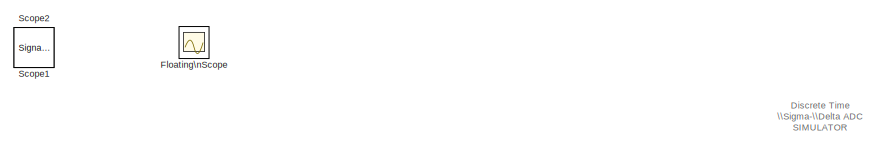
[diagram: root canvas - part 1/6, top left region]
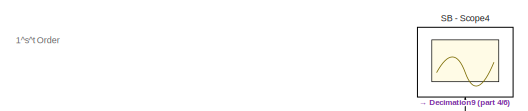
[diagram: root canvas - part 2/6, top right region]
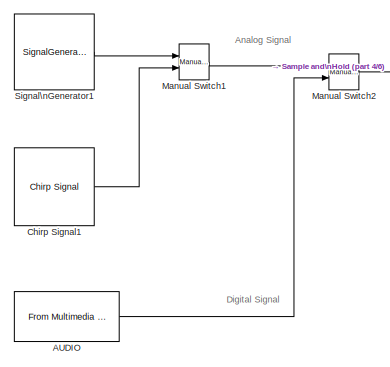
[diagram: root canvas - part 3/6, top left region]
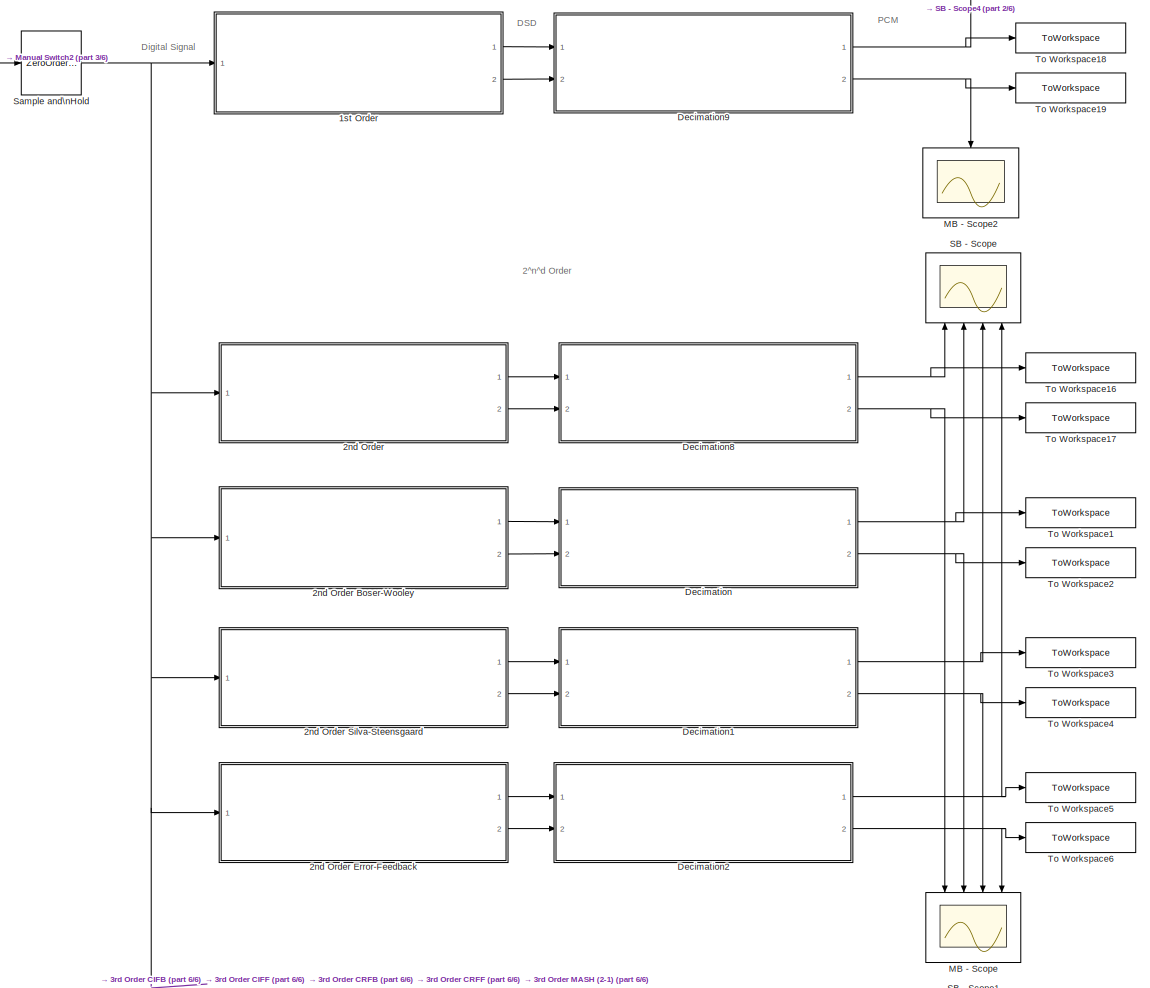
[diagram: root canvas - part 4/6, central region]
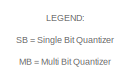
[diagram: root canvas - part 5/6, middle right region]
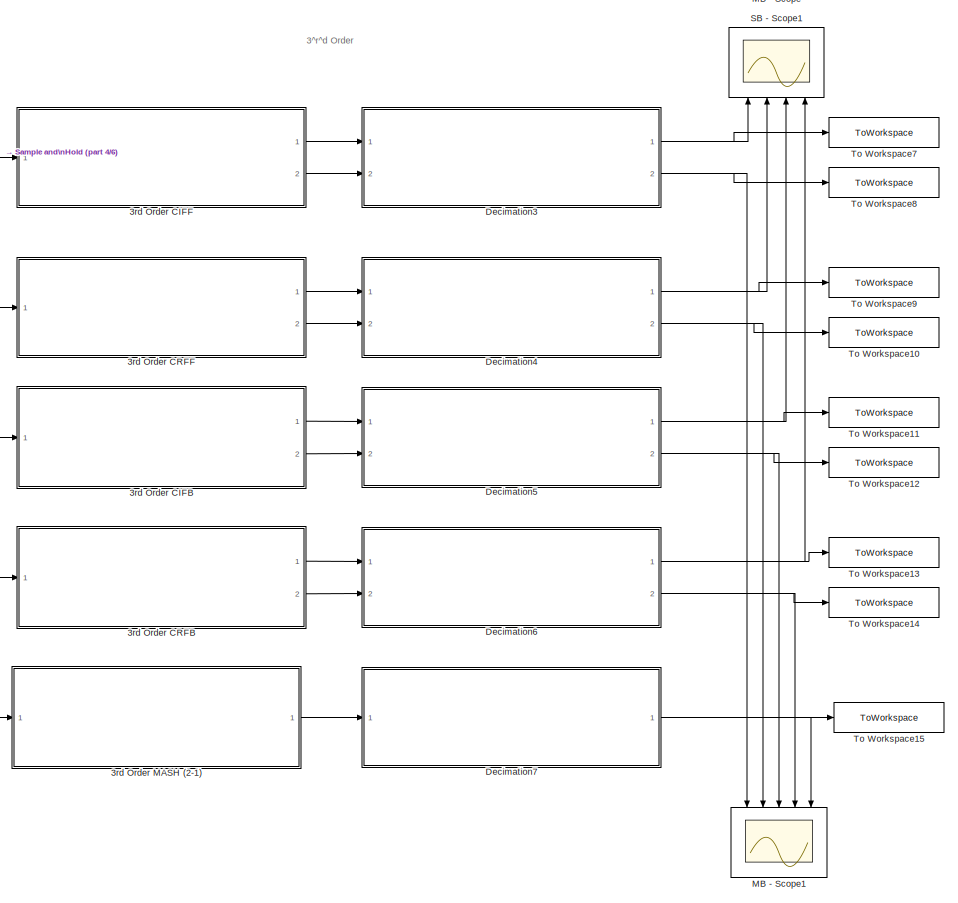
[diagram: root canvas - part 6/6, bottom center region]
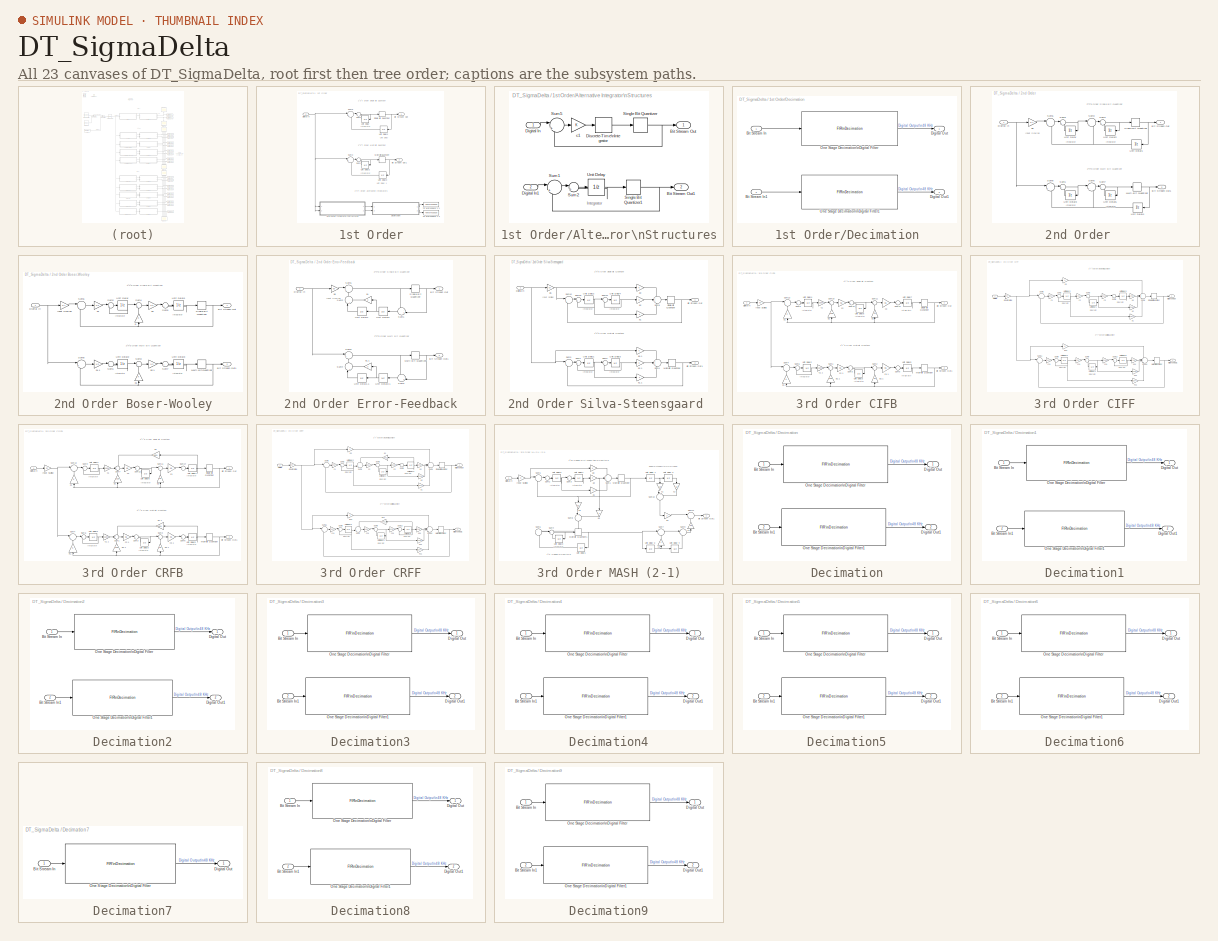
[diagram: thumbnail index - all 23 canvases of the model, root first then tree order]
MODEL DT_SigmaDelta
KIND model
CONFIG PreLoadFcn = load one_stage.mat
BLOCK [SubSystem] 1st Order
  FunctionWithSeparateData = off
  MaskHideContents = off
  MinAlgLoopOccurrences = off
  Opaque = off
  Ports = [1, 2]
  PropExecContextOutsideSubsystem = off
  RTWSystemCode = Auto
  RequestExecContextInheritance = off
  SID = 1515
BLOCK [Outport] 1st Order/ Bit Stream Out
  IconDisplay = Port number
  OutDataTypeStr = double
  SID = 1551
BLOCK [Outport] 1st Order/ Bit Stream Out1
  IconDisplay = Port number
  OutDataTypeStr = double
  Port = 2
  SID = 1552
BLOCK [SubSystem] 1st Order/Alternative Integrator\nStructures
  FunctionWithSeparateData = off
  MaskHideContents = off
  MinAlgLoopOccurrences = off
  Opaque = off
  Ports = [2, 2]
  PropExecContextOutsideSubsystem = off
  RTWSystemCode = Auto
  RequestExecContextInheritance = off
  SID = 1517
BLOCK [Outport] 1st Order/Alternative Integrator\nStructures/Bit Stream Out
  IconDisplay = Port number
  OutDataTypeStr = double
  SID = 1528
BLOCK [Outport] 1st Order/Alternative Integrator\nStructures/Bit Stream Out1
  IconDisplay = Port number
  OutDataTypeStr = double
  Port = 2
  SID = 1529
BLOCK [Inport] 1st Order/Alternative Integrator\nStructures/Digital In
  IconDisplay = Port number
  SID = 1518
BLOCK [Inport] 1st Order/Alternative Integrator\nStructures/Digital In1
  IconDisplay = Port number
  Port = 2
  SID = 1519
BLOCK [DiscreteIntegrator] 1st Order/Alternative Integrator\nStructures/Discrete-Time\nIntegrator
  ICPrevOutput = DiscIntNeverNeededParam
  ICPrevScaledInput = DiscIntNeverNeededParam
  LowerSaturationLimit = -1
  Ports = [1, 1]
  SID = 1520
  SampleTime = 1/(48e3*64)
  UpperSaturationLimit = 1
BLOCK [Signum] 1st Order/Alternative Integrator\nStructures/Single Bit Quantizer
  SID = 1521
  SampleTime = 1/(48e3*64)
BLOCK [Signum] 1st Order/Alternative Integrator\nStructures/Single Bit Quantizer1
  SID = 1522
  SampleTime = 1/(48e3*64)
BLOCK [Sum] 1st Order/Alternative Integrator\nStructures/Sum1
  AccumDataTypeStr = double
  IconShape = round
  InputSameDT = off
  Inputs = |+-
  OutDataTypeStr = Inherit: Inherit via internal rule
  Ports = [2, 1]
  SID = 1523
  SampleTime = 1/(48e3*64)
  SaturateOnIntegerOverflow = off
BLOCK [Sum] 1st Order/Alternative Integrator\nStructures/Sum2
  IconShape = round
  InputSameDT = off
  Inputs = |++
  OutDataTypeStr = Inherit: Inherit via internal rule
  Ports = [2, 1]
  SID = 1524
  SaturateOnIntegerOverflow = off
BLOCK [Sum] 1st Order/Alternative Integrator\nStructures/Sum5
  AccumDataTypeStr = double
  IconShape = round
  InputSameDT = off
  Inputs = |+-
  OutDataTypeStr = Inherit: Inherit via internal rule
  Ports = [2, 1]
  SID = 1525
  SampleTime = 1/(48e3*64)
  SaturateOnIntegerOverflow = off
BLOCK [UnitDelay] 1st Order/Alternative Integrator\nStructures/Unit Delay
  SID = 1526
  SampleTime = 1/(48e3*64)
BLOCK [Gain] 1st Order/Alternative Integrator\nStructures/c1
  OutDataTypeStr = Inherit: Inherit via internal rule
  ParamDataTypeStr = Inherit: Inherit via internal rule
  SID = 1527
  SampleTime = 1/(48e3*64)
  SaturateOnIntegerOverflow = off
BLOCK [SubSystem] 1st Order/Decimation
  FunctionWithSeparateData = off
  MaskHideContents = off
  MinAlgLoopOccurrences = off
  Opaque = off
  Ports = [2, 2]
  PropExecContextOutsideSubsystem = off
  RTWSystemCode = Auto
  RequestExecContextInheritance = off
  SID = 1532
BLOCK [Inport] 1st Order/Decimation/Bit Stream In
  IconDisplay = Port number
  SID = 1533
BLOCK [Inport] 1st Order/Decimation/Bit Stream In1
  IconDisplay = Port number
  Port = 2
  SID = 1534
BLOCK [Outport] 1st Order/Decimation/Digital Out
  IconDisplay = Port number
  SID = 1537
BLOCK [Outport] 1st Order/Decimation/Digital Out1
  IconDisplay = Port number
  Port = 2
  SID = 1538
BLOCK [Reference] 1st Order/Decimation/One Stage Decimation\nDigital Filter  REF=dspmlti4/FIR\nDecimation
  D = 64
  FilterObject = h
  FilterSource = Filter object
  InputProcessing = Inherited (this choice will be removed - see release notes)
  LockScale = off
  Ports = [1, 1]
  SID = 1535
  SourceBlock = dspmlti4/FIR\nDecimation
  SourceType = FIR Decimation
  Tag = BlockMethodSubSystem
  UserData = DataTag0
  UserDataPersistent = on
  accumDataTypeStr = Inherit: Inherit via internal rule
  accumFracLength = 30
  accumLastDataTypeStr = Inherit: Inherit via internal rule
  accumMode = Inherit via internal rule
  accumWordLength = 32
  additionalParams = off
  allowOverrides = on
  filtStruct = Direct form
  firstCoeffDataTypeStr = Inherit: Same word length as input
  firstCoeffFracLength = 15
  firstCoeffLastDataTypeStr = Inherit: Same word length as input
  firstCoeffMax = []
  firstCoeffMin = []
  firstCoeffMode = Same word length as input
  firstCoeffWordLength = 16
  framing = Maintain input frame size
  h = [1.55406407911568e-005 -4.02976869344532e-006 -3.62744882919974e-006 -3.32415900794419e-006 -3.10004007346292e-006 -2.94488775900927e-006 -2.84407867825443e-006 -2.79175810569639e-006 -2.77680534274625e-006 -2.79636876946116e-006 -2.84159739559419e-006 -2.91172216432913e-006 -2.99938731666961e-006 -3.10526988821609e-006 -3.22293122491583e-006 -3.35411175577608e-006 -3.49288760841827e-006 -3.641824...<+47050ch>  <repeated x21 — deduplicated; at blocks: One Stage Decimation\nDigital Filter, One Stage Decimation\nDigital Filter1>
  inputOffset = 0
  outputBufInitCond = 0
  outputDataTypeStr = Inherit: Same as accumulator
  outputFracLength = 15
  outputLastDataTypeStr = Inherit: Same as accumulator
  outputMax = []
  outputMin = []
  outputMode = Same as accumulator
  outputWordLength = 16
  overflowMode = off
  prodOutputDataTypeStr = Inherit: Inherit via internal rule
  prodOutputFracLength = 30
  prodOutputLastDataTypeStr = Inherit: Inherit via internal rule
  prodOutputMode = Inherit via internal rule
  prodOutputWordLength = 32
  roundingMode = Floor
BLOCK [Reference] 1st Order/Decimation/One Stage Decimation\nDigital Filter1  REF=dspmlti4/FIR\nDecimation
  D = 64
  FilterObject = h
  FilterSource = Filter object
  InputProcessing = Inherited (this choice will be removed - see release notes)
  LockScale = off
  Ports = [1, 1]
  SID = 1536
  SourceBlock = dspmlti4/FIR\nDecimation
  SourceType = FIR Decimation
  Tag = BlockMethodSubSystem
  UserData = DataTag1
  UserDataPersistent = on
  accumDataTypeStr = Inherit: Inherit via internal rule
  accumFracLength = 30
  accumLastDataTypeStr = Inherit: Inherit via internal rule
  accumMode = Inherit via internal rule
  accumWordLength = 32
  additionalParams = off
  allowOverrides = on
  filtStruct = Direct form
  firstCoeffDataTypeStr = Inherit: Same word length as input
  firstCoeffFracLength = 15
  firstCoeffLastDataTypeStr = Inherit: Same word length as input
  firstCoeffMax = []
  firstCoeffMin = []
  firstCoeffMode = Same word length as input
  firstCoeffWordLength = 16
  framing = Maintain input frame size
  inputOffset = 0
  outputBufInitCond = 0
  outputDataTypeStr = Inherit: Same as accumulator
  outputFracLength = 15
  outputLastDataTypeStr = Inherit: Same as accumulator
  outputMax = []
  outputMin = []
  outputMode = Same as accumulator
  outputWordLength = 16
  overflowMode = off
  prodOutputDataTypeStr = Inherit: Inherit via internal rule
  prodOutputFracLength = 30
  prodOutputLastDataTypeStr = Inherit: Inherit via internal rule
  prodOutputMode = Inherit via internal rule
  prodOutputWordLength = 32
  roundingMode = Floor
BLOCK [Inport] 1st Order/Digital In 
  IconDisplay = Port number
  SID = 1516
BLOCK [Quantizer] 1st Order/Multi-BitQuantizer
  QuantizationInterval = 0.14
  SID = 1539
  SampleTime = 1/(48e3*64)
BLOCK [Signum] 1st Order/Single Bit Quantizer
  SID = 1540
  SampleTime = 1/(48e3*64)
BLOCK [Sum] 1st Order/Sum1
  IconShape = round
  InputSameDT = off
  Inputs = |++
  OutDataTypeStr = Inherit: Inherit via internal rule
  Ports = [2, 1]
  SID = 1541
  SaturateOnIntegerOverflow = off
BLOCK [Sum] 1st Order/Sum2
  IconShape = round
  InputSameDT = off
  Inputs = |++
  OutDataTypeStr = Inherit: Inherit via internal rule
  Ports = [2, 1]
  SID = 1542
  SaturateOnIntegerOverflow = off
BLOCK [Sum] 1st Order/Sum3
  AccumDataTypeStr = double
  IconShape = round
  InputSameDT = off
  Inputs = |+-
  OutDataTypeStr = Inherit: Inherit via internal rule
  Ports = [2, 1]
  SID = 1543
  SampleTime = 1/(48e3*64)
  SaturateOnIntegerOverflow = off
BLOCK [Sum] 1st Order/Sum5
  AccumDataTypeStr = double
  IconShape = round
  InputSameDT = off
  Inputs = |+-
  OutDataTypeStr = Inherit: Inherit via internal rule
  Ports = [2, 1]
  SID = 1544
  SampleTime = 1/(48e3*64)
  SaturateOnIntegerOverflow = off
BLOCK [ToWorkspace] 1st Order/To Workspace 1.1
  MaxDataPoints = inf
  Ports = [1]
  SID = 1545
  SampleTime = -1
  VariableName = SBO1i
BLOCK [ToWorkspace] 1st Order/To Workspace 1.2
  MaxDataPoints = inf
  Ports = [1]
  SID = 1546
  SampleTime = -1
  VariableName = SBO1d
BLOCK [UnitDelay] 1st Order/Unit Delay
  SID = 1547
  SampleTime = 1/(48e3*64)
BLOCK [UnitDelay] 1st Order/Unit Delay1
  SID = 1548
  SampleTime = 1/(48e3*64)
BLOCK [UnitDelay] 1st Order/Unit Delay2
  SID = 1549
  SampleTime = 1/(48e3*64)
BLOCK [UnitDelay] 1st Order/Unit Delay3
  SID = 1550
  SampleTime = 1/(48e3*64)
BLOCK [SubSystem] 2nd Order  
  FunctionWithSeparateData = off
  MaskHideContents = off
  MinAlgLoopOccurrences = off
  Opaque = off
  Ports = [1, 2]
  PropExecContextOutsideSubsystem = off
  RTWSystemCode = Auto
  RequestExecContextInheritance = off
  SID = 1475
BLOCK [Outport] 2nd Order  /Bit Stream Out
  IconDisplay = Port number
  OutDataTypeStr = double
  SID = 1494
BLOCK [Outport] 2nd Order  /Bit Stream Out1
  IconDisplay = Port number
  OutDataTypeStr = double
  Port = 2
  SID = 1495
BLOCK [Inport] 2nd Order  /Digital In
  IconDisplay = Port number
  SID = 1476
BLOCK [Quantizer] 2nd Order  /Multi-Bit Quantizer
  QuantizationInterval = 0.15
  SID = 1477
  SampleTime = 1/(48e3*64)
BLOCK [Signum] 2nd Order  /Single Bit Quantizer
  SID = 1478
  SampleTime = 1/(48e3*64)
BLOCK [Sum] 2nd Order  /Sum1
  IconShape = round
  InputSameDT = off
  Inputs = |++
  OutDataTypeStr = Inherit: Inherit via internal rule
  Ports = [2, 1]
  SID = 1479
  SampleTime = 1/(48e3*64)
  SaturateOnIntegerOverflow = off
BLOCK [Sum] 2nd Order  /Sum2
  IconShape = round
  InputSameDT = off
  Inputs = |++
  OutDataTypeStr = Inherit: Inherit via internal rule
  Ports = [2, 1]
  SID = 1480
  SampleTime = 1/(48e3*64)
  SaturateOnIntegerOverflow = off
BLOCK [Sum] 2nd Order  /Sum3
  AccumDataTypeStr = double
  IconShape = round
  InputSameDT = off
  Inputs = |+-
  OutDataTypeStr = Inherit: Inherit via internal rule
  Ports = [2, 1]
  SID = 1481
  SampleTime = 1/(48e3*64)
  SaturateOnIntegerOverflow = off
BLOCK [Sum] 2nd Order  /Sum4
  IconShape = round
  InputSameDT = off
  Inputs = |++
  OutDataTypeStr = Inherit: Inherit via internal rule
  Ports = [2, 1]
  SID = 1683
  SampleTime = 1/(48e3*64)
  SaturateOnIntegerOverflow = off
BLOCK [Sum] 2nd Order  /Sum5
  AccumDataTypeStr = double
  IconShape = round
  InputSameDT = off
  Inputs = |+-
  OutDataTypeStr = Inherit: Inherit via internal rule
  Ports = [2, 1]
  SID = 1483
  SampleTime = 1/(48e3*64)
  SaturateOnIntegerOverflow = off
BLOCK [Sum] 2nd Order  /Sum6
  AccumDataTypeStr = double
  IconShape = round
  InputSameDT = off
  Inputs = |+-
  OutDataTypeStr = Inherit: Inherit via internal rule
  Ports = [2, 1]
  SID = 1484
  SampleTime = 1/(48e3*64)
  SaturateOnIntegerOverflow = off
BLOCK [Sum] 2nd Order  /Sum7
  IconShape = round
  InputSameDT = off
  Inputs = |++
  OutDataTypeStr = Inherit: Inherit via internal rule
  Ports = [2, 1]
  SID = 1687
  SampleTime = 1/(48e3*64)
  SaturateOnIntegerOverflow = off
BLOCK [Sum] 2nd Order  /Sum8
  AccumDataTypeStr = double
  IconShape = round
  InputSameDT = off
  Inputs = |+-
  OutDataTypeStr = Inherit: Inherit via internal rule
  Ports = [2, 1]
  SID = 1486
  SampleTime = 1/(48e3*64)
  SaturateOnIntegerOverflow = off
BLOCK [UnitDelay] 2nd Order  /Unit Delay
  SID = 1487
  SampleTime = 1/(48e3*64)
BLOCK [UnitDelay] 2nd Order  /Unit Delay1
  SID = 1682
  SampleTime = 1/(48e3*64)
BLOCK [UnitDelay] 2nd Order  /Unit Delay2
  SID = 1684
  SampleTime = 1/(48e3*64)
BLOCK [UnitDelay] 2nd Order  /Unit Delay3
  SID = 1489
  SampleTime = 1/(48e3*64)
BLOCK [UnitDelay] 2nd Order  /Unit Delay4
  SID = 1686
  SampleTime = 1/(48e3*64)
BLOCK [UnitDelay] 2nd Order  /Unit Delay5
  SID = 1688
  SampleTime = 1/(48e3*64)
BLOCK [Gain] 2nd Order  /a5
  Gain = 0.7
  OutDataTypeStr = Inherit: Inherit via internal rule
  ParamDataTypeStr = Inherit: Inherit via internal rule
  SID = 1493
  SampleTime = 1/(48e3*64)
  SaturateOnIntegerOverflow = off
BLOCK [SubSystem] 2nd Order Boser-Wooley
  FunctionWithSeparateData = off
  MaskHideContents = off
  MinAlgLoopOccurrences = off
  Opaque = off
  Ports = [1, 2]
  PropExecContextOutsideSubsystem = off
  RTWSystemCode = Auto
  RequestExecContextInheritance = off
  SID = 99
BLOCK [Outport] 2nd Order Boser-Wooley/Bit Stream Out
  IconDisplay = Port number
  OutDataTypeStr = double
  SID = 745
BLOCK [Outport] 2nd Order Boser-Wooley/Bit Stream Out1
  IconDisplay = Port number
  OutDataTypeStr = double
  Port = 2
  SID = 758
BLOCK [Inport] 2nd Order Boser-Wooley/Digital In 
  IconDisplay = Port number
  SID = 100
BLOCK [Gain] 2nd Order Boser-Wooley/Input Scaling
  Gain = 0.7
  OutDataTypeStr = Inherit: Inherit via internal rule
  ParamDataTypeStr = Inherit: Inherit via internal rule
  SID = 734
  SampleTime = 1/(48e3*64)
  SaturateOnIntegerOverflow = off
BLOCK [Quantizer] 2nd Order Boser-Wooley/Multi-BitQuantizer
  QuantizationInterval = 0.15
  SID = 747
  SampleTime = 1/(48e3*64)
BLOCK [Signum] 2nd Order Boser-Wooley/Single-Bit Quantizer
  SID = 735
  SampleTime = 1/(48e3*64)
BLOCK [Sum] 2nd Order Boser-Wooley/Sum1
  IconShape = round
  InputSameDT = off
  Inputs = |++
  OutDataTypeStr = Inherit: Inherit via internal rule
  Ports = [2, 1]
  SID = 749
  SampleTime = 1/(48e3*64)
  SaturateOnIntegerOverflow = off
BLOCK [Sum] 2nd Order Boser-Wooley/Sum2
  IconShape = round
  InputSameDT = off
  Inputs = |++
  OutDataTypeStr = Inherit: Inherit via internal rule
  Ports = [2, 1]
  SID = 736
  SampleTime = 1/(48e3*64)
  SaturateOnIntegerOverflow = off
BLOCK [Sum] 2nd Order Boser-Wooley/Sum3
  IconShape = round
  InputSameDT = off
  Inputs = |+-
  OutDataTypeStr = Inherit: Inherit via internal rule
  Ports = [2, 1]
  SID = 750
  SampleTime = 1/(48e3*64)
  SaturateOnIntegerOverflow = off
BLOCK [Sum] 2nd Order Boser-Wooley/Sum4
  IconShape = round
  InputSameDT = off
  Inputs = |+-
  OutDataTypeStr = Inherit: Inherit via internal rule
  Ports = [2, 1]
  SID = 737
  SampleTime = 1/(48e3*64)
  SaturateOnIntegerOverflow = off
BLOCK [Sum] 2nd Order Boser-Wooley/Sum5
  IconShape = round
  InputSameDT = off
  Inputs = |++
  OutDataTypeStr = Inherit: Inherit via internal rule
  Ports = [2, 1]
  SID = 738
  SampleTime = 1/(48e3*64)
  SaturateOnIntegerOverflow = off
BLOCK [Sum] 2nd Order Boser-Wooley/Sum6
  AccumDataTypeStr = double
  IconShape = round
  InputSameDT = off
  Inputs = |+-
  OutDataTypeStr = Inherit: Inherit via internal rule
  Ports = [2, 1]
  SID = 739
  SampleTime = 1/(48e3*64)
  SaturateOnIntegerOverflow = off
BLOCK [Sum] 2nd Order Boser-Wooley/Sum7
  IconShape = round
  InputSameDT = off
  Inputs = |++
  OutDataTypeStr = Inherit: Inherit via internal rule
  Ports = [2, 1]
  SID = 751
  SampleTime = 1/(48e3*64)
  SaturateOnIntegerOverflow = off
BLOCK [Sum] 2nd Order Boser-Wooley/Sum8
  AccumDataTypeStr = double
  IconShape = round
  InputSameDT = off
  Inputs = |+-
  OutDataTypeStr = Inherit: Inherit via internal rule
  Ports = [2, 1]
  SID = 752
  SampleTime = 1/(48e3*64)
  SaturateOnIntegerOverflow = off
BLOCK [UnitDelay] 2nd Order Boser-Wooley/Unit Delay
  SID = 740
  SampleTime = 1/(48e3*64)
BLOCK [UnitDelay] 2nd Order Boser-Wooley/Unit Delay1
  SID = 741
  SampleTime = 1/(48e3*64)
BLOCK [UnitDelay] 2nd Order Boser-Wooley/Unit Delay2
  SID = 753
  SampleTime = 1/(48e3*64)
BLOCK [UnitDelay] 2nd Order Boser-Wooley/Unit Delay3
  SID = 754
  SampleTime = 1/(48e3*64)
BLOCK [Gain] 2nd Order Boser-Wooley/a1
  Gain = 1/2
  OutDataTypeStr = Inherit: Inherit via internal rule
  ParamDataTypeStr = Inherit: Inherit via internal rule
  SID = 742
  SampleTime = 1/(48e3*64)
  SaturateOnIntegerOverflow = off
BLOCK [Gain] 2nd Order Boser-Wooley/a1.1
  Gain = 1/2
  OutDataTypeStr = Inherit: Inherit via internal rule
  ParamDataTypeStr = Inherit: Inherit via internal rule
  SID = 755
  SampleTime = 1/(48e3*64)
  SaturateOnIntegerOverflow = off
BLOCK [Gain] 2nd Order Boser-Wooley/a2
  Gain = 1/2
  OutDataTypeStr = Inherit: Inherit via internal rule
  ParamDataTypeStr = Inherit: Inherit via internal rule
  SID = 743
  SampleTime = 1/(48e3*64)
  SaturateOnIntegerOverflow = off
BLOCK [Gain] 2nd Order Boser-Wooley/a2.1
  Gain = 1/2
  OutDataTypeStr = Inherit: Inherit via internal rule
  ParamDataTypeStr = Inherit: Inherit via internal rule
  SID = 756
  SampleTime = 1/(48e3*64)
  SaturateOnIntegerOverflow = off
BLOCK [Gain] 2nd Order Boser-Wooley/b
  OutDataTypeStr = Inherit: Inherit via internal rule
  ParamDataTypeStr = Inherit: Inherit via internal rule
  SID = 744
  SampleTime = 1/(48e3*64)
  SaturateOnIntegerOverflow = off
BLOCK [Gain] 2nd Order Boser-Wooley/b1
  OutDataTypeStr = Inherit: Inherit via internal rule
  ParamDataTypeStr = Inherit: Inherit via internal rule
  SID = 757
  SampleTime = 1/(48e3*64)
  SaturateOnIntegerOverflow = off
BLOCK [SubSystem] 2nd Order Error-Feedback
  FunctionWithSeparateData = off
  MaskHideContents = off
  MinAlgLoopOccurrences = off
  Opaque = off
  Ports = [1, 2]
  PropExecContextOutsideSubsystem = off
  RTWSystemCode = Auto
  RequestExecContextInheritance = off
  SID = 783
BLOCK [Outport] 2nd Order Error-Feedback/Bit Stream Out
  IconDisplay = Port number
  OutDataTypeStr = double
  SID = 818
BLOCK [Outport] 2nd Order Error-Feedback/Bit Stream Out1
  IconDisplay = Port number
  OutDataTypeStr = double
  Port = 2
  SID = 826
BLOCK [Inport] 2nd Order Error-Feedback/Digital In
  IconDisplay = Port number
  SID = 784
BLOCK [Quantizer] 2nd Order Error-Feedback/Multi-Bit Quantizer
  QuantizationInterval = 0.15
  SID = 827
  SampleTime = 1/(48e3*64)
BLOCK [Signum] 2nd Order Error-Feedback/Single-Bit Quantizer
  SID = 811
  SampleTime = 1/(48e3*64)
BLOCK [Sum] 2nd Order Error-Feedback/Sum1
  AccumDataTypeStr = double
  IconShape = round
  InputSameDT = off
  Inputs = -+|
  OutDataTypeStr = Inherit: Inherit via internal rule
  Ports = [2, 1]
  SID = 812
  SampleTime = 1/(48e3*64)
  SaturateOnIntegerOverflow = off
BLOCK [Sum] 2nd Order Error-Feedback/Sum2
  AccumDataTypeStr = double
  IconShape = round
  InputSameDT = off
  Inputs = |+-
  OutDataTypeStr = Inherit: Inherit via internal rule
  Ports = [2, 1]
  SID = 813
  SampleTime = 1/(48e3*64)
  SaturateOnIntegerOverflow = off
BLOCK [Sum] 2nd Order Error-Feedback/Sum3
  AccumDataTypeStr = double
  IconShape = round
  InputSameDT = off
  Inputs = -+|
  OutDataTypeStr = Inherit: Inherit via internal rule
  Ports = [2, 1]
  SID = 820
  SampleTime = 1/(48e3*64)
  SaturateOnIntegerOverflow = off
BLOCK [Sum] 2nd Order Error-Feedback/Sum4
  AccumDataTypeStr = double
  IconShape = round
  InputSameDT = off
  Inputs = |+-
  OutDataTypeStr = Inherit: Inherit via internal rule
  Ports = [2, 1]
  SID = 821
  SampleTime = 1/(48e3*64)
  SaturateOnIntegerOverflow = off
BLOCK [Sum] 2nd Order Error-Feedback/Sum5
  AccumDataTypeStr = double
  IconShape = round
  InputSameDT = off
  Inputs = |++
  OutDataTypeStr = Inherit: Inherit via internal rule
  Ports = [2, 1]
  SID = 814
  SampleTime = 1/(48e3*64)
  SaturateOnIntegerOverflow = off
BLOCK [Sum] 2nd Order Error-Feedback/Sum6
  AccumDataTypeStr = double
  IconShape = round
  InputSameDT = off
  Inputs = |++
  OutDataTypeStr = Inherit: Inherit via internal rule
  Ports = [2, 1]
  SID = 822
  SampleTime = 1/(48e3*64)
  SaturateOnIntegerOverflow = off
BLOCK [UnitDelay] 2nd Order Error-Feedback/Unit Delay1
  SID = 815
  SampleTime = 1/(48e3*64)
BLOCK [UnitDelay] 2nd Order Error-Feedback/Unit Delay1.1
  SID = 823
  SampleTime = 1/(48e3*64)
BLOCK [UnitDelay] 2nd Order Error-Feedback/Unit Delay2
  SID = 816
  SampleTime = 1/(48e3*64)
BLOCK [UnitDelay] 2nd Order Error-Feedback/Unit Delay2.1
  SID = 824
  SampleTime = 1/(48e3*64)
BLOCK [Gain] 2nd Order Error-Feedback/a1
  Gain = 2
  OutDataTypeStr = Inherit: Inherit via internal rule
  ParamDataTypeStr = Inherit: Inherit via internal rule
  SID = 817
  SampleTime = 1/(48e3*64)
  SaturateOnIntegerOverflow = off
BLOCK [Gain] 2nd Order Error-Feedback/a1.1
  Gain = 2
  OutDataTypeStr = Inherit: Inherit via internal rule
  ParamDataTypeStr = Inherit: Inherit via internal rule
  SID = 825
  SampleTime = 1/(48e3*64)
  SaturateOnIntegerOverflow = off
BLOCK [Gain] 2nd Order Error-Feedback/a5
  Gain = 0.7
  OutDataTypeStr = Inherit: Inherit via internal rule
  ParamDataTypeStr = Inherit: Inherit via internal rule
  SID = 804
  SampleTime = 1/(48e3*64)
  SaturateOnIntegerOverflow = off
BLOCK [SubSystem] 2nd Order Silva-Steensgaard 
  FunctionWithSeparateData = off
  MaskHideContents = off
  MinAlgLoopOccurrences = off
  Opaque = off
  Ports = [1, 2]
  PropExecContextOutsideSubsystem = off
  RTWSystemCode = Auto
  RequestExecContextInheritance = off
  SID = 1
BLOCK [Outport] 2nd Order Silva-Steensgaard /Bit Stream Out
  IconDisplay = Port number
  OutDataTypeStr = double
  SID = 770
BLOCK [Outport] 2nd Order Silva-Steensgaard /Bit Stream Out1
  IconDisplay = Port number
  OutDataTypeStr = double
  Port = 2
  SID = 782
BLOCK [Inport] 2nd Order Silva-Steensgaard /Digital In
  IconDisplay = Port number
  SID = 2
BLOCK [Quantizer] 2nd Order Silva-Steensgaard /Multi-Bit Quantizer
  QuantizationInterval = 0.15
  SID = 771
  SampleTime = 1/(48e3*64)
BLOCK [Signum] 2nd Order Silva-Steensgaard /Single-Bit Quantizer
  SID = 760
  SampleTime = 1/(48e3*64)
BLOCK [Sum] 2nd Order Silva-Steensgaard /Sum1
  IconShape = round
  InputSameDT = off
  Inputs = |++
  OutDataTypeStr = Inherit: Inherit via internal rule
  Ports = [2, 1]
  SID = 773
  SampleTime = 1/(48e3*64)
  SaturateOnIntegerOverflow = off
BLOCK [Sum] 2nd Order Silva-Steensgaard /Sum10
  IconShape = round
  InputSameDT = off
  Inputs = |++
  OutDataTypeStr = Inherit: Inherit via internal rule
  Ports = [2, 1]
  SID = 762
  SampleTime = 1/(48e3*64)
  SaturateOnIntegerOverflow = off
BLOCK [Sum] 2nd Order Silva-Steensgaard /Sum11
  IconShape = round
  InputSameDT = off
  Inputs = |++
  OutDataTypeStr = Inherit: Inherit via internal rule
  Ports = [2, 1]
  SID = 763
  SampleTime = 1/(48e3*64)
  SaturateOnIntegerOverflow = off
BLOCK [Sum] 2nd Order Silva-Steensgaard /Sum12
  AccumDataTypeStr = double
  IconShape = round
  InputSameDT = off
  Inputs = |+-
  OutDataTypeStr = Inherit: Inherit via internal rule
  Ports = [2, 1]
  SID = 764
  SampleTime = 1/(48e3*64)
  SaturateOnIntegerOverflow = off
BLOCK [Sum] 2nd Order Silva-Steensgaard /Sum2
  IconShape = round
  InputSameDT = off
  Inputs = |++
  OutDataTypeStr = Inherit: Inherit via internal rule
  Ports = [2, 1]
  SID = 774
  SampleTime = 1/(48e3*64)
  SaturateOnIntegerOverflow = off
BLOCK [Sum] 2nd Order Silva-Steensgaard /Sum3
  AccumDataTypeStr = double
  IconShape = round
  InputSameDT = off
  Inputs = |+-
  OutDataTypeStr = Inherit: Inherit via internal rule
  Ports = [2, 1]
  SID = 775
  SampleTime = 1/(48e3*64)
  SaturateOnIntegerOverflow = off
BLOCK [Sum] 2nd Order Silva-Steensgaard /Sum4
  AccumDataTypeStr = double
  IconShape = round
  InputSameDT = off
  Inputs = +++
  OutDataTypeStr = Inherit: Inherit via internal rule
  Ports = [3, 1]
  SID = 776
  SampleTime = 1/(48e3*64)
  SaturateOnIntegerOverflow = off
BLOCK [Sum] 2nd Order Silva-Steensgaard /Sum9
  AccumDataTypeStr = double
  IconShape = round
  InputSameDT = off
  Inputs = +++
  OutDataTypeStr = Inherit: Inherit via internal rule
  Ports = [3, 1]
  SID = 761
  SampleTime = 1/(48e3*64)
  SaturateOnIntegerOverflow = off
BLOCK [UnitDelay] 2nd Order Silva-Steensgaard /Unit Delay1
  SID = 777
  SampleTime = 1/(48e3*64)
BLOCK [UnitDelay] 2nd Order Silva-Steensgaard /Unit Delay2
  SID = 765
  SampleTime = 1/(48e3*64)
BLOCK [UnitDelay] 2nd Order Silva-Steensgaard /Unit Delay3
  SID = 778
  SampleTime = 1/(48e3*64)
BLOCK [UnitDelay] 2nd Order Silva-Steensgaard /Unit Delay4
  SID = 766
  SampleTime = 1/(48e3*64)
BLOCK [Gain] 2nd Order Silva-Steensgaard /a0
  OutDataTypeStr = Inherit: Inherit via internal rule
  ParamDataTypeStr = Inherit: Inherit via internal rule
  SID = 767
  SampleTime = 1/(48e3*64)
  SaturateOnIntegerOverflow = off
BLOCK [Gain] 2nd Order Silva-Steensgaard /a0.1
  OutDataTypeStr = Inherit: Inherit via internal rule
  ParamDataTypeStr = Inherit: Inherit via internal rule
  SID = 779
  SampleTime = 1/(48e3*64)
  SaturateOnIntegerOverflow = off
BLOCK [Gain] 2nd Order Silva-Steensgaard /a1
  Gain = 2
  OutDataTypeStr = Inherit: Inherit via internal rule
  ParamDataTypeStr = Inherit: Inherit via internal rule
  SID = 768
  SampleTime = 1/(48e3*64)
  SaturateOnIntegerOverflow = off
BLOCK [Gain] 2nd Order Silva-Steensgaard /a1.1
  Gain = 2
  OutDataTypeStr = Inherit: Inherit via internal rule
  ParamDataTypeStr = Inherit: Inherit via internal rule
  SID = 780
  SampleTime = 1/(48e3*64)
  SaturateOnIntegerOverflow = off
BLOCK [Gain] 2nd Order Silva-Steensgaard /a2
  OutDataTypeStr = Inherit: Inherit via internal rule
  ParamDataTypeStr = Inherit: Inherit via internal rule
  SID = 769
  SampleTime = 1/(48e3*64)
  SaturateOnIntegerOverflow = off
BLOCK [Gain] 2nd Order Silva-Steensgaard /a2.1
  OutDataTypeStr = Inherit: Inherit via internal rule
  ParamDataTypeStr = Inherit: Inherit via internal rule
  SID = 781
  SampleTime = 1/(48e3*64)
  SaturateOnIntegerOverflow = off
BLOCK [Gain] 2nd Order Silva-Steensgaard /a5
  Gain = 0.7
  OutDataTypeStr = Inherit: Inherit via internal rule
  ParamDataTypeStr = Inherit: Inherit via internal rule
  SID = 702
  SampleTime = 1/(48e3*64)
  SaturateOnIntegerOverflow = off
BLOCK [SubSystem] 3rd Order CIFB
  FunctionWithSeparateData = off
  MaskHideContents = off
  MinAlgLoopOccurrences = off
  Opaque = off
  Ports = [1, 2]
  PropExecContextOutsideSubsystem = off
  RTWSystemCode = Auto
  RequestExecContextInheritance = off
  SID = 1318
BLOCK [Outport] 3rd Order CIFB/Bit Stream Out
  IconDisplay = Port number
  OutDataTypeStr = double
  SID = 1353
BLOCK [Outport] 3rd Order CIFB/Bit Stream Out1
  IconDisplay = Port number
  OutDataTypeStr = double
  Port = 2
  SID = 1354
BLOCK [Inport] 3rd Order CIFB/Digital In 
  IconDisplay = Port number
  SID = 1319
BLOCK [Gain] 3rd Order CIFB/Input Scaling
  Gain = 0.7
  OutDataTypeStr = Inherit: Inherit via internal rule
  ParamDataTypeStr = Inherit: Inherit via internal rule
  SID = 1320
  SampleTime = 1/(48e3*64)
  SaturateOnIntegerOverflow = off
BLOCK [Quantizer] 3rd Order CIFB/Multi-Bit Quantizer
  QuantizationInterval = 0.15
  SID = 1321
  SampleTime = 1/(48e3*64)
BLOCK [Signum] 3rd Order CIFB/Single-Bit Qunatizer
  SID = 1322
  SampleTime = 1/(48e3*64)
BLOCK [Sum] 3rd Order CIFB/Sum1
  IconShape = round
  InputSameDT = off
  Inputs = |+-
  OutDataTypeStr = Inherit: Inherit via internal rule
  Ports = [2, 1]
  SID = 1323
  SaturateOnIntegerOverflow = off
BLOCK [Sum] 3rd Order CIFB/Sum10
  IconShape = round
  InputSameDT = off
  Inputs = |+-
  OutDataTypeStr = Inherit: Inherit via internal rule
  Ports = [2, 1]
  SID = 1324
  SaturateOnIntegerOverflow = off
BLOCK [Sum] 3rd Order CIFB/Sum11
  IconShape = round
  InputSameDT = off
  Inputs = |+-
  OutDataTypeStr = Inherit: Inherit via internal rule
  Ports = [2, 1]
  SID = 1325
  SaturateOnIntegerOverflow = off
BLOCK [Sum] 3rd Order CIFB/Sum12
  IconShape = round
  InputSameDT = off
  Inputs = |++
  OutDataTypeStr = Inherit: Inherit via internal rule
  Ports = [2, 1]
  SID = 1326
  SampleTime = 1/(48e3*64)
  SaturateOnIntegerOverflow = off
BLOCK [Sum] 3rd Order CIFB/Sum13
  AccumDataTypeStr = double
  IconShape = round
  InputSameDT = off
  Inputs = |+-
  OutDataTypeStr = Inherit: Inherit via internal rule
  Ports = [2, 1]
  SID = 1327
  SampleTime = 1/(48e3*64)
  SaturateOnIntegerOverflow = off
BLOCK [Sum] 3rd Order CIFB/Sum14
  IconShape = round
  InputSameDT = off
  Inputs = |++
  OutDataTypeStr = Inherit: Inherit via internal rule
  Ports = [2, 1]
  SID = 1328
  SampleTime = 1/(48e3*64)
  SaturateOnIntegerOverflow = off
BLOCK [Sum] 3rd Order CIFB/Sum2
  IconShape = round
  InputSameDT = off
  Inputs = |+-
  OutDataTypeStr = Inherit: Inherit via internal rule
  Ports = [2, 1]
  SID = 1329
  SaturateOnIntegerOverflow = off
BLOCK [Sum] 3rd Order CIFB/Sum3
  IconShape = round
  InputSameDT = off
  Inputs = |++
  OutDataTypeStr = Inherit: Inherit via internal rule
  Ports = [2, 1]
  SID = 1330
  SampleTime = 1/(48e3*64)
  SaturateOnIntegerOverflow = off
BLOCK [Sum] 3rd Order CIFB/Sum4
  AccumDataTypeStr = double
  IconShape = round
  InputSameDT = off
  Inputs = |+-
  OutDataTypeStr = Inherit: Inherit via internal rule
  Ports = [2, 1]
  SID = 1331
  SampleTime = 1/(48e3*64)
  SaturateOnIntegerOverflow = off
BLOCK [Sum] 3rd Order CIFB/Sum5
  IconShape = round
  InputSameDT = off
  Inputs = |++
  OutDataTypeStr = Inherit: Inherit via internal rule
  Ports = [2, 1]
  SID = 1332
  SampleTime = 1/(48e3*64)
  SaturateOnIntegerOverflow = off
BLOCK [Sum] 3rd Order CIFB/Sum6
  IconShape = round
  InputSameDT = off
  Inputs = |++
  OutDataTypeStr = Inherit: Inherit via internal rule
  Ports = [2, 1]
  SID = 1333
  SampleTime = 1/(48e3*64)
  SaturateOnIntegerOverflow = off
BLOCK [Sum] 3rd Order CIFB/Sum9
  IconShape = round
  InputSameDT = off
  Inputs = |++
  OutDataTypeStr = Inherit: Inherit via internal rule
  Ports = [2, 1]
  SID = 1334
  SampleTime = 1/(48e3*64)
  SaturateOnIntegerOverflow = off
BLOCK [UnitDelay] 3rd Order CIFB/Unit Delay2
  SID = 1335
  SampleTime = 1/(48e3*64)
BLOCK [UnitDelay] 3rd Order CIFB/Unit Delay3
  SID = 1336
  SampleTime = 1/(48e3*64)
BLOCK [UnitDelay] 3rd Order CIFB/Unit Delay4
  SID = 1337
  SampleTime = 1/(48e3*64)
BLOCK [UnitDelay] 3rd Order CIFB/Unit Delay5
  SID = 1338
  SampleTime = 1/(48e3*64)
BLOCK [UnitDelay] 3rd Order CIFB/Unit Delay6
  SID = 1339
  SampleTime = 1/(48e3*64)
BLOCK [UnitDelay] 3rd Order CIFB/Unit Delay7
  SID = 1340
  SampleTime = 1/(48e3*64)
BLOCK [Gain] 3rd Order CIFB/a1
  OutDataTypeStr = Inherit: Inherit via internal rule
  ParamDataTypeStr = Inherit: Inherit via internal rule
  SID = 1341
  SaturateOnIntegerOverflow = off
BLOCK [Gain] 3rd Order CIFB/a1.1
  OutDataTypeStr = Inherit: Inherit via internal rule
  ParamDataTypeStr = Inherit: Inherit via internal rule
  SID = 1342
  SaturateOnIntegerOverflow = off
BLOCK [Gain] 3rd Order CIFB/a2
  Gain = 0.15
  OutDataTypeStr = Inherit: Inherit via internal rule
  ParamDataTypeStr = Inherit: Inherit via internal rule
  SID = 1343
  SaturateOnIntegerOverflow = off
BLOCK [Gain] 3rd Order CIFB/a2.1
  Gain = 0.15
  OutDataTypeStr = Inherit: Inherit via internal rule
  ParamDataTypeStr = Inherit: Inherit via internal rule
  SID = 1344
  SaturateOnIntegerOverflow = off
BLOCK [Gain] 3rd Order CIFB/a3
  Gain = 0.9
  OutDataTypeStr = Inherit: Inherit via internal rule
  ParamDataTypeStr = Inherit: Inherit via internal rule
  SID = 1345
  SaturateOnIntegerOverflow = off
BLOCK [Gain] 3rd Order CIFB/a3.1
  Gain = 0.9
  OutDataTypeStr = Inherit: Inherit via internal rule
  ParamDataTypeStr = Inherit: Inherit via internal rule
  SID = 1346
  SaturateOnIntegerOverflow = off
BLOCK [Gain] 3rd Order CIFB/c1
  Gain = 1/100
  OutDataTypeStr = Inherit: Inherit via internal rule
  ParamDataTypeStr = Inherit: Inherit via internal rule
  SID = 1347
  SampleTime = 1/(48e3*64)
  SaturateOnIntegerOverflow = off
BLOCK [Gain] 3rd Order CIFB/c1.1
  Gain = 1/100
  OutDataTypeStr = Inherit: Inherit via internal rule
  ParamDataTypeStr = Inherit: Inherit via internal rule
  SID = 1348
  SampleTime = 1/(48e3*64)
  SaturateOnIntegerOverflow = off
BLOCK [Gain] 3rd Order CIFB/c2
  Gain = 0.5
  OutDataTypeStr = Inherit: Inherit via internal rule
  ParamDataTypeStr = Inherit: Inherit via internal rule
  SID = 1349
  SaturateOnIntegerOverflow = off
BLOCK [Gain] 3rd Order CIFB/c2.1
  Gain = 0.5
  OutDataTypeStr = Inherit: Inherit via internal rule
  ParamDataTypeStr = Inherit: Inherit via internal rule
  SID = 1350
  SaturateOnIntegerOverflow = off
BLOCK [Gain] 3rd Order CIFB/c3
  Gain = 0.5
  OutDataTypeStr = Inherit: Inherit via internal rule
  ParamDataTypeStr = Inherit: Inherit via internal rule
  SID = 1351
  SaturateOnIntegerOverflow = off
BLOCK [Gain] 3rd Order CIFB/c3.1
  Gain = 0.5
  OutDataTypeStr = Inherit: Inherit via internal rule
  ParamDataTypeStr = Inherit: Inherit via internal rule
  SID = 1352
  SaturateOnIntegerOverflow = off
BLOCK [SubSystem] 3rd Order CIFF
  FunctionWithSeparateData = off
  MaskHideContents = off
  MinAlgLoopOccurrences = off
  Opaque = off
  Ports = [1, 2]
  PropExecContextOutsideSubsystem = off
  RTWSystemCode = Auto
  RequestExecContextInheritance = off
  SID = 1690
BLOCK [Outport] 3rd Order CIFF/Bit Stream Out
  IconDisplay = Port number
  OutDataTypeStr = double
  SID = 1729
BLOCK [Outport] 3rd Order CIFF/Bit Stream Out1
  IconDisplay = Port number
  OutDataTypeStr = double
  Port = 2
  SID = 1730
BLOCK [Inport] 3rd Order CIFF/Digital In
  IconDisplay = Port number
  SID = 1691
BLOCK [Gain] 3rd Order CIFF/Input Scaling
  Gain = 0.7
  OutDataTypeStr = Inherit: Inherit via internal rule
  ParamDataTypeStr = Inherit: Inherit via internal rule
  SID = 1692
  SampleTime = 1/(48e3*64)
  SaturateOnIntegerOverflow = off
BLOCK [Quantizer] 3rd Order CIFF/Multi-Bit Quantizer
  QuantizationInterval = 0.125
  SID = 1693
  SampleTime = 1/(48e3*64)
BLOCK [Signum] 3rd Order CIFF/Single Bit Quantizer
  SID = 1694
  SampleTime = 1/(48e3*64)
BLOCK [Sum] 3rd Order CIFF/Sum10
  AccumDataTypeStr = double
  IconShape = round
  InputSameDT = off
  Inputs = ++++
  OutDataTypeStr = Inherit: Inherit via internal rule
  Ports = [4, 1]
  SID = 1696
  SampleTime = 1/(48e3*64)
  SaturateOnIntegerOverflow = off
BLOCK [Sum] 3rd Order CIFF/Sum11
  AccumDataTypeStr = double
  IconShape = round
  InputSameDT = off
  Inputs = |+-
  OutDataTypeStr = Inherit: Inherit via internal rule
  Ports = [2, 1]
  SID = 1697
  SampleTime = 1/(48e3*64)
  SaturateOnIntegerOverflow = off
BLOCK [Sum] 3rd Order CIFF/Sum12
  IconShape = round
  InputSameDT = off
  Inputs = |++
  OutDataTypeStr = Inherit: Inherit via internal rule
  Ports = [2, 1]
  SID = 1698
  SampleTime = 1/(48e3*64)
  SaturateOnIntegerOverflow = off
BLOCK [Sum] 3rd Order CIFF/Sum2
  IconShape = round
  InputSameDT = off
  Inputs = |++
  OutDataTypeStr = Inherit: Inherit via internal rule
  Ports = [2, 1]
  SID = 1699
  SampleTime = 1/(48e3*64)
  SaturateOnIntegerOverflow = off
BLOCK [Sum] 3rd Order CIFF/Sum3
  IconShape = round
  InputSameDT = off
  Inputs = |++
  OutDataTypeStr = Inherit: Inherit via internal rule
  Ports = [2, 1]
  SID = 1700
  SampleTime = 1/(48e3*64)
  SaturateOnIntegerOverflow = off
BLOCK [Sum] 3rd Order CIFF/Sum4
  AccumDataTypeStr = double
  IconShape = round
  InputSameDT = off
  Inputs = ++++
  OutDataTypeStr = Inherit: Inherit via internal rule
  Ports = [4, 1]
  SID = 1701
  SampleTime = 1/(48e3*64)
  SaturateOnIntegerOverflow = off
BLOCK [Sum] 3rd Order CIFF/Sum5
  AccumDataTypeStr = double
  IconShape = round
  InputSameDT = off
  Inputs = |+-
  OutDataTypeStr = Inherit: Inherit via internal rule
  Ports = [2, 1]
  SID = 1702
  SampleTime = 1/(48e3*64)
  SaturateOnIntegerOverflow = off
BLOCK [Sum] 3rd Order CIFF/Sum6
  IconShape = round
  InputSameDT = off
  Inputs = |++
  OutDataTypeStr = Inherit: Inherit via internal rule
  Ports = [2, 1]
  SID = 1703
  SampleTime = 1/(48e3*64)
  SaturateOnIntegerOverflow = off
BLOCK [Sum] 3rd Order CIFF/Sum8
  IconShape = round
  InputSameDT = off
  Inputs = |++
  OutDataTypeStr = Inherit: Inherit via internal rule
  Ports = [2, 1]
  SID = 1705
  SampleTime = 1/(48e3*64)
  SaturateOnIntegerOverflow = off
BLOCK [Sum] 3rd Order CIFF/Sum9
  IconShape = round
  InputSameDT = off
  Inputs = |++
  OutDataTypeStr = Inherit: Inherit via internal rule
  Ports = [2, 1]
  SID = 1706
  SampleTime = 1/(48e3*64)
  SaturateOnIntegerOverflow = off
BLOCK [UnitDelay] 3rd Order CIFF/Unit Delay1
  SID = 1707
  SampleTime = 1/(48e3*64)
BLOCK [UnitDelay] 3rd Order CIFF/Unit Delay2
  SID = 1708
  SampleTime = 1/(48e3*64)
BLOCK [UnitDelay] 3rd Order CIFF/Unit Delay3
  SID = 1709
  SampleTime = 1/(48e3*64)
BLOCK [UnitDelay] 3rd Order CIFF/Unit Delay4
  SID = 1710
  SampleTime = 1/(48e3*64)
BLOCK [UnitDelay] 3rd Order CIFF/Unit Delay5
  SID = 1711
  SampleTime = 1/(48e3*64)
BLOCK [UnitDelay] 3rd Order CIFF/Unit Delay6
  SID = 1712
  SampleTime = 1/(48e3*64)
BLOCK [Gain] 3rd Order CIFF/a1
  Gain = 1.877
  OutDataTypeStr = Inherit: Inherit via internal rule
  ParamDataTypeStr = Inherit: Inherit via internal rule
  SID = 1713
  SampleTime = 1/(48e3*64)
  SaturateOnIntegerOverflow = off
BLOCK [Gain] 3rd Order CIFF/a1.1
  Gain = 1.877
  OutDataTypeStr = Inherit: Inherit via internal rule
  ParamDataTypeStr = Inherit: Inherit via internal rule
  SID = 1714
  SampleTime = 1/(48e3*64)
  SaturateOnIntegerOverflow = off
BLOCK [Gain] 3rd Order CIFF/a2
  Gain = 2.183
  OutDataTypeStr = Inherit: Inherit via internal rule
  ParamDataTypeStr = Inherit: Inherit via internal rule
  SID = 1715
  SampleTime = 1/(48e3*64)
  SaturateOnIntegerOverflow = off
BLOCK [Gain] 3rd Order CIFF/a2.1
  Gain = 2.183
  OutDataTypeStr = Inherit: Inherit via internal rule
  ParamDataTypeStr = Inherit: Inherit via internal rule
  SID = 1716
  SampleTime = 1/(48e3*64)
  SaturateOnIntegerOverflow = off
BLOCK [Gain] 3rd Order CIFF/a3
  Gain = 2.46
  OutDataTypeStr = Inherit: Inherit via internal rule
  ParamDataTypeStr = Inherit: Inherit via internal rule
  SID = 1717
  SampleTime = 1/(48e3*64)
  SaturateOnIntegerOverflow = off
BLOCK [Gain] 3rd Order CIFF/a3.1
  Gain = 2.46
  OutDataTypeStr = Inherit: Inherit via internal rule
  ParamDataTypeStr = Inherit: Inherit via internal rule
  SID = 1718
  SampleTime = 1/(48e3*64)
  SaturateOnIntegerOverflow = off
BLOCK [Gain] 3rd Order CIFF/b3
  OutDataTypeStr = Inherit: Inherit via internal rule
  ParamDataTypeStr = Inherit: Inherit via internal rule
  SID = 1719
  SampleTime = 1/(48e3*64)
  SaturateOnIntegerOverflow = off
BLOCK [Gain] 3rd Order CIFF/b3.1
  OutDataTypeStr = Inherit: Inherit via internal rule
  ParamDataTypeStr = Inherit: Inherit via internal rule
  SID = 1720
  SampleTime = 1/(48e3*64)
  SaturateOnIntegerOverflow = off
BLOCK [Gain] 3rd Order CIFF/c1
  Gain = 0.427
  OutDataTypeStr = Inherit: Inherit via internal rule
  ParamDataTypeStr = Inherit: Inherit via internal rule
  SID = 1721
  SampleTime = 1/(48e3*64)
  SaturateOnIntegerOverflow = off
BLOCK [Gain] 3rd Order CIFF/c1.1
  Gain = 0.427
  OutDataTypeStr = Inherit: Inherit via internal rule
  ParamDataTypeStr = Inherit: Inherit via internal rule
  SID = 1722
  SampleTime = 1/(48e3*64)
  SaturateOnIntegerOverflow = off
BLOCK [Gain] 3rd Order CIFF/c2
  Gain = 0.31
  OutDataTypeStr = Inherit: Inherit via internal rule
  ParamDataTypeStr = Inherit: Inherit via internal rule
  SID = 1723
  SampleTime = 1/(48e3*64)
  SaturateOnIntegerOverflow = off
BLOCK [Gain] 3rd Order CIFF/c2.1
  Gain = 0.31
  OutDataTypeStr = Inherit: Inherit via internal rule
  ParamDataTypeStr = Inherit: Inherit via internal rule
  SID = 1724
  SampleTime = 1/(48e3*64)
  SaturateOnIntegerOverflow = off
BLOCK [Gain] 3rd Order CIFF/c3
  Gain = 0.135
  OutDataTypeStr = Inherit: Inherit via internal rule
  ParamDataTypeStr = Inherit: Inherit via internal rule
  SID = 1725
  SampleTime = 1/(48e3*64)
  SaturateOnIntegerOverflow = off
BLOCK [Gain] 3rd Order CIFF/c3.1
  Gain = 0.135
  OutDataTypeStr = Inherit: Inherit via internal rule
  ParamDataTypeStr = Inherit: Inherit via internal rule
  SID = 1726
  SampleTime = 1/(48e3*64)
  SaturateOnIntegerOverflow = off
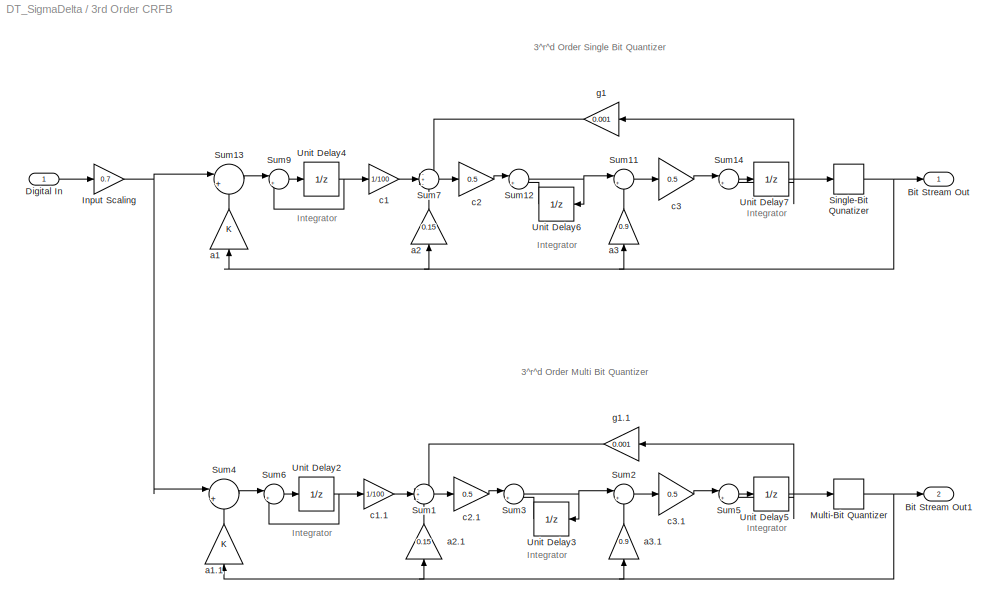
BLOCK [SubSystem] 3rd Order CRFB
  FunctionWithSeparateData = off
  MaskHideContents = off
  MinAlgLoopOccurrences = off
  Opaque = off
  Ports = [1, 2]
  PropExecContextOutsideSubsystem = off
  RTWSystemCode = Auto
  RequestExecContextInheritance = off
  SID = 1357
BLOCK [Outport] 3rd Order CRFB/Bit Stream Out
  IconDisplay = Port number
  OutDataTypeStr = double
  SID = 1394
BLOCK [Outport] 3rd Order CRFB/Bit Stream Out1
  IconDisplay = Port number
  OutDataTypeStr = double
  Port = 2
  SID = 1395
BLOCK [Inport] 3rd Order CRFB/Digital In 
  IconDisplay = Port number
  SID = 1358
BLOCK [Gain] 3rd Order CRFB/Input Scaling
  Gain = 0.7
  OutDataTypeStr = Inherit: Inherit via internal rule
  ParamDataTypeStr = Inherit: Inherit via internal rule
  SID = 1359
  SampleTime = 1/(48e3*64)
  SaturateOnIntegerOverflow = off
BLOCK [Quantizer] 3rd Order CRFB/Multi-Bit Quantizer
  QuantizationInterval = 0.125
  SID = 1360
  SampleTime = 1/(48e3*64)
BLOCK [Signum] 3rd Order CRFB/Single-Bit Qunatizer
  SID = 1361
  SampleTime = 1/(48e3*64)
BLOCK [Sum] 3rd Order CRFB/Sum1
  IconShape = round
  InputSameDT = off
  Inputs = -+-
  OutDataTypeStr = Inherit: Inherit via internal rule
  Ports = [3, 1]
  SID = 1362
  SaturateOnIntegerOverflow = off
BLOCK [Sum] 3rd Order CRFB/Sum11
  IconShape = round
  InputSameDT = off
  Inputs = |+-
  OutDataTypeStr = Inherit: Inherit via internal rule
  Ports = [2, 1]
  SID = 1363
  SaturateOnIntegerOverflow = off
BLOCK [Sum] 3rd Order CRFB/Sum12
  IconShape = round
  InputSameDT = off
  Inputs = |++
  OutDataTypeStr = Inherit: Inherit via internal rule
  Ports = [2, 1]
  SID = 1364
  SampleTime = 1/(48e3*64)
  SaturateOnIntegerOverflow = off
BLOCK [Sum] 3rd Order CRFB/Sum13
  AccumDataTypeStr = double
  IconShape = round
  InputSameDT = off
  Inputs = |+-
  OutDataTypeStr = Inherit: Inherit via internal rule
  Ports = [2, 1]
  SID = 1365
  SampleTime = 1/(48e3*64)
  SaturateOnIntegerOverflow = off
BLOCK [Sum] 3rd Order CRFB/Sum14
  IconShape = round
  InputSameDT = off
  Inputs = |++
  OutDataTypeStr = Inherit: Inherit via internal rule
  Ports = [2, 1]
  SID = 1366
  SampleTime = 1/(48e3*64)
  SaturateOnIntegerOverflow = off
BLOCK [Sum] 3rd Order CRFB/Sum2
  IconShape = round
  InputSameDT = off
  Inputs = |+-
  OutDataTypeStr = Inherit: Inherit via internal rule
  Ports = [2, 1]
  SID = 1367
  SaturateOnIntegerOverflow = off
BLOCK [Sum] 3rd Order CRFB/Sum3
  IconShape = round
  InputSameDT = off
  Inputs = |++
  OutDataTypeStr = Inherit: Inherit via internal rule
  Ports = [2, 1]
  SID = 1368
  SampleTime = 1/(48e3*64)
  SaturateOnIntegerOverflow = off
BLOCK [Sum] 3rd Order CRFB/Sum4
  AccumDataTypeStr = double
  IconShape = round
  InputSameDT = off
  Inputs = |+-
  OutDataTypeStr = Inherit: Inherit via internal rule
  Ports = [2, 1]
  SID = 1369
  SampleTime = 1/(48e3*64)
  SaturateOnIntegerOverflow = off
BLOCK [Sum] 3rd Order CRFB/Sum5
  IconShape = round
  InputSameDT = off
  Inputs = |++
  OutDataTypeStr = Inherit: Inherit via internal rule
  Ports = [2, 1]
  SID = 1370
  SampleTime = 1/(48e3*64)
  SaturateOnIntegerOverflow = off
BLOCK [Sum] 3rd Order CRFB/Sum6
  IconShape = round
  InputSameDT = off
  Inputs = |++
  OutDataTypeStr = Inherit: Inherit via internal rule
  Ports = [2, 1]
  SID = 1371
  SampleTime = 1/(48e3*64)
  SaturateOnIntegerOverflow = off
BLOCK [Sum] 3rd Order CRFB/Sum7
  IconShape = round
  InputSameDT = off
  Inputs = -+-
  OutDataTypeStr = Inherit: Inherit via internal rule
  Ports = [3, 1]
  SID = 1372
  SaturateOnIntegerOverflow = off
BLOCK [Sum] 3rd Order CRFB/Sum9
  IconShape = round
  InputSameDT = off
  Inputs = |++
  OutDataTypeStr = Inherit: Inherit via internal rule
  Ports = [2, 1]
  SID = 1373
  SampleTime = 1/(48e3*64)
  SaturateOnIntegerOverflow = off
BLOCK [UnitDelay] 3rd Order CRFB/Unit Delay2
  SID = 1374
  SampleTime = 1/(48e3*64)
BLOCK [UnitDelay] 3rd Order CRFB/Unit Delay3
  SID = 1375
  SampleTime = 1/(48e3*64)
BLOCK [UnitDelay] 3rd Order CRFB/Unit Delay4
  SID = 1376
  SampleTime = 1/(48e3*64)
BLOCK [UnitDelay] 3rd Order CRFB/Unit Delay5
  SID = 1377
  SampleTime = 1/(48e3*64)
BLOCK [UnitDelay] 3rd Order CRFB/Unit Delay6
  SID = 1378
  SampleTime = 1/(48e3*64)
BLOCK [UnitDelay] 3rd Order CRFB/Unit Delay7
  SID = 1379
  SampleTime = 1/(48e3*64)
BLOCK [Gain] 3rd Order CRFB/a1
  OutDataTypeStr = Inherit: Inherit via internal rule
  ParamDataTypeStr = Inherit: Inherit via internal rule
  SID = 1380
  SaturateOnIntegerOverflow = off
BLOCK [Gain] 3rd Order CRFB/a1.1
  OutDataTypeStr = Inherit: Inherit via internal rule
  ParamDataTypeStr = Inherit: Inherit via internal rule
  SID = 1381
  SaturateOnIntegerOverflow = off
BLOCK [Gain] 3rd Order CRFB/a2
  Gain = 0.15
  OutDataTypeStr = Inherit: Inherit via internal rule
  ParamDataTypeStr = Inherit: Inherit via internal rule
  SID = 1382
  SaturateOnIntegerOverflow = off
BLOCK [Gain] 3rd Order CRFB/a2.1
  Gain = 0.15
  OutDataTypeStr = Inherit: Inherit via internal rule
  ParamDataTypeStr = Inherit: Inherit via internal rule
  SID = 1383
  SaturateOnIntegerOverflow = off
BLOCK [Gain] 3rd Order CRFB/a3
  Gain = 0.9
  OutDataTypeStr = Inherit: Inherit via internal rule
  ParamDataTypeStr = Inherit: Inherit via internal rule
  SID = 1384
  SaturateOnIntegerOverflow = off
BLOCK [Gain] 3rd Order CRFB/a3.1
  Gain = 0.9
  OutDataTypeStr = Inherit: Inherit via internal rule
  ParamDataTypeStr = Inherit: Inherit via internal rule
  SID = 1385
  SaturateOnIntegerOverflow = off
BLOCK [Gain] 3rd Order CRFB/c1
  Gain = 1/100
  OutDataTypeStr = Inherit: Inherit via internal rule
  ParamDataTypeStr = Inherit: Inherit via internal rule
  SID = 1386
  SampleTime = 1/(48e3*64)
  SaturateOnIntegerOverflow = off
BLOCK [Gain] 3rd Order CRFB/c1.1
  Gain = 1/100
  OutDataTypeStr = Inherit: Inherit via internal rule
  ParamDataTypeStr = Inherit: Inherit via internal rule
  SID = 1387
  SampleTime = 1/(48e3*64)
  SaturateOnIntegerOverflow = off
BLOCK [Gain] 3rd Order CRFB/c2
  Gain = 0.5
  OutDataTypeStr = Inherit: Inherit via internal rule
  ParamDataTypeStr = Inherit: Inherit via internal rule
  SID = 1388
  SaturateOnIntegerOverflow = off
BLOCK [Gain] 3rd Order CRFB/c2.1
  Gain = 0.5
  OutDataTypeStr = Inherit: Inherit via internal rule
  ParamDataTypeStr = Inherit: Inherit via internal rule
  SID = 1389
  SaturateOnIntegerOverflow = off
BLOCK [Gain] 3rd Order CRFB/c3
  Gain = 0.5
  OutDataTypeStr = Inherit: Inherit via internal rule
  ParamDataTypeStr = Inherit: Inherit via internal rule
  SID = 1390
  SaturateOnIntegerOverflow = off
BLOCK [Gain] 3rd Order CRFB/c3.1
  Gain = 0.5
  OutDataTypeStr = Inherit: Inherit via internal rule
  ParamDataTypeStr = Inherit: Inherit via internal rule
  SID = 1391
  SaturateOnIntegerOverflow = off
BLOCK [Gain] 3rd Order CRFB/g1
  Gain = 0.001
  OutDataTypeStr = Inherit: Inherit via internal rule
  ParamDataTypeStr = Inherit: Inherit via internal rule
  SID = 1392
  SaturateOnIntegerOverflow = off
BLOCK [Gain] 3rd Order CRFB/g1.1
  Gain = 0.001
  OutDataTypeStr = Inherit: Inherit via internal rule
  ParamDataTypeStr = Inherit: Inherit via internal rule
  SID = 1393
  SaturateOnIntegerOverflow = off
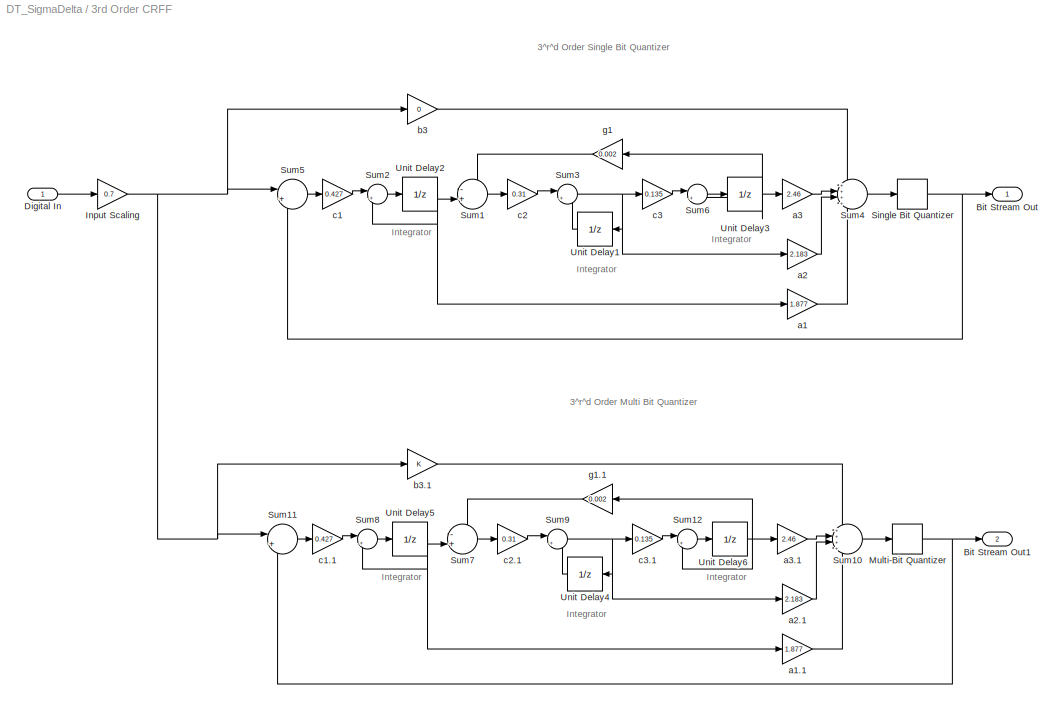
BLOCK [SubSystem] 3rd Order CRFF
  FunctionWithSeparateData = off
  MaskHideContents = off
  MinAlgLoopOccurrences = off
  Opaque = off
  Ports = [1, 2]
  PropExecContextOutsideSubsystem = off
  RTWSystemCode = Auto
  RequestExecContextInheritance = off
  SID = 1587
BLOCK [Outport] 3rd Order CRFF/Bit Stream Out
  IconDisplay = Port number
  OutDataTypeStr = double
  SID = 1626
BLOCK [Outport] 3rd Order CRFF/Bit Stream Out1
  IconDisplay = Port number
  OutDataTypeStr = double
  Port = 2
  SID = 1627
BLOCK [Inport] 3rd Order CRFF/Digital In
  IconDisplay = Port number
  SID = 1588
BLOCK [Gain] 3rd Order CRFF/Input Scaling
  Gain = 0.7
  OutDataTypeStr = Inherit: Inherit via internal rule
  ParamDataTypeStr = Inherit: Inherit via internal rule
  SID = 1589
  SampleTime = 1/(48e3*64)
  SaturateOnIntegerOverflow = off
BLOCK [Quantizer] 3rd Order CRFF/Multi-Bit Quantizer
  QuantizationInterval = 0.125
  SID = 1590
  SampleTime = 1/(48e3*64)
BLOCK [Signum] 3rd Order CRFF/Single Bit Quantizer
  SID = 1591
  SampleTime = 1/(48e3*64)
BLOCK [Sum] 3rd Order CRFF/Sum1
  AccumDataTypeStr = double
  IconShape = round
  InputSameDT = off
  Inputs = -+|
  OutDataTypeStr = Inherit: Inherit via internal rule
  Ports = [2, 1]
  SID = 1592
  SampleTime = 1/(48e3*64)
  SaturateOnIntegerOverflow = off
BLOCK [Sum] 3rd Order CRFF/Sum10
  AccumDataTypeStr = double
  IconShape = round
  InputSameDT = off
  Inputs = ++++
  OutDataTypeStr = Inherit: Inherit via internal rule
  Ports = [4, 1]
  SID = 1593
  SampleTime = 1/(48e3*64)
  SaturateOnIntegerOverflow = off
BLOCK [Sum] 3rd Order CRFF/Sum11
  AccumDataTypeStr = double
  IconShape = round
  InputSameDT = off
  Inputs = |+-
  OutDataTypeStr = Inherit: Inherit via internal rule
  Ports = [2, 1]
  SID = 1594
  SampleTime = 1/(48e3*64)
  SaturateOnIntegerOverflow = off
BLOCK [Sum] 3rd Order CRFF/Sum12
  IconShape = round
  InputSameDT = off
  Inputs = |++
  OutDataTypeStr = Inherit: Inherit via internal rule
  Ports = [2, 1]
  SID = 1595
  SampleTime = 1/(48e3*64)
  SaturateOnIntegerOverflow = off
BLOCK [Sum] 3rd Order CRFF/Sum2
  IconShape = round
  InputSameDT = off
  Inputs = |++
  OutDataTypeStr = Inherit: Inherit via internal rule
  Ports = [2, 1]
  SID = 1596
  SampleTime = 1/(48e3*64)
  SaturateOnIntegerOverflow = off
BLOCK [Sum] 3rd Order CRFF/Sum3
  IconShape = round
  InputSameDT = off
  Inputs = |++
  OutDataTypeStr = Inherit: Inherit via internal rule
  Ports = [2, 1]
  SID = 1597
  SampleTime = 1/(48e3*64)
  SaturateOnIntegerOverflow = off
BLOCK [Sum] 3rd Order CRFF/Sum4
  AccumDataTypeStr = double
  IconShape = round
  InputSameDT = off
  Inputs = ++++
  OutDataTypeStr = Inherit: Inherit via internal rule
  Ports = [4, 1]
  SID = 1598
  SampleTime = 1/(48e3*64)
  SaturateOnIntegerOverflow = off
BLOCK [Sum] 3rd Order CRFF/Sum5
  AccumDataTypeStr = double
  IconShape = round
  InputSameDT = off
  Inputs = |+-
  OutDataTypeStr = Inherit: Inherit via internal rule
  Ports = [2, 1]
  SID = 1599
  SampleTime = 1/(48e3*64)
  SaturateOnIntegerOverflow = off
BLOCK [Sum] 3rd Order CRFF/Sum6
  IconShape = round
  InputSameDT = off
  Inputs = |++
  OutDataTypeStr = Inherit: Inherit via internal rule
  Ports = [2, 1]
  SID = 1600
  SampleTime = 1/(48e3*64)
  SaturateOnIntegerOverflow = off
BLOCK [Sum] 3rd Order CRFF/Sum7
  AccumDataTypeStr = double
  IconShape = round
  InputSameDT = off
  Inputs = -+|
  OutDataTypeStr = Inherit: Inherit via internal rule
  Ports = [2, 1]
  SID = 1601
  SampleTime = 1/(48e3*64)
  SaturateOnIntegerOverflow = off
BLOCK [Sum] 3rd Order CRFF/Sum8
  IconShape = round
  InputSameDT = off
  Inputs = |++
  OutDataTypeStr = Inherit: Inherit via internal rule
  Ports = [2, 1]
  SID = 1602
  SampleTime = 1/(48e3*64)
  SaturateOnIntegerOverflow = off
BLOCK [Sum] 3rd Order CRFF/Sum9
  IconShape = round
  InputSameDT = off
  Inputs = |++
  OutDataTypeStr = Inherit: Inherit via internal rule
  Ports = [2, 1]
  SID = 1603
  SampleTime = 1/(48e3*64)
  SaturateOnIntegerOverflow = off
BLOCK [UnitDelay] 3rd Order CRFF/Unit Delay1
  SID = 1604
  SampleTime = 1/(48e3*64)
BLOCK [UnitDelay] 3rd Order CRFF/Unit Delay2
  SID = 1605
  SampleTime = 1/(48e3*64)
BLOCK [UnitDelay] 3rd Order CRFF/Unit Delay3
  SID = 1606
  SampleTime = 1/(48e3*64)
BLOCK [UnitDelay] 3rd Order CRFF/Unit Delay4
  SID = 1607
  SampleTime = 1/(48e3*64)
BLOCK [UnitDelay] 3rd Order CRFF/Unit Delay5
  SID = 1608
  SampleTime = 1/(48e3*64)
BLOCK [UnitDelay] 3rd Order CRFF/Unit Delay6
  SID = 1609
  SampleTime = 1/(48e3*64)
BLOCK [Gain] 3rd Order CRFF/a1
  Gain = 1.877
  OutDataTypeStr = Inherit: Inherit via internal rule
  ParamDataTypeStr = Inherit: Inherit via internal rule
  SID = 1610
  SampleTime = 1/(48e3*64)
  SaturateOnIntegerOverflow = off
BLOCK [Gain] 3rd Order CRFF/a1.1
  Gain = 1.877
  OutDataTypeStr = Inherit: Inherit via internal rule
  ParamDataTypeStr = Inherit: Inherit via internal rule
  SID = 1611
  SampleTime = 1/(48e3*64)
  SaturateOnIntegerOverflow = off
BLOCK [Gain] 3rd Order CRFF/a2
  Gain = 2.183
  OutDataTypeStr = Inherit: Inherit via internal rule
  ParamDataTypeStr = Inherit: Inherit via internal rule
  SID = 1612
  SampleTime = 1/(48e3*64)
  SaturateOnIntegerOverflow = off
BLOCK [Gain] 3rd Order CRFF/a2.1
  Gain = 2.183
  OutDataTypeStr = Inherit: Inherit via internal rule
  ParamDataTypeStr = Inherit: Inherit via internal rule
  SID = 1613
  SampleTime = 1/(48e3*64)
  SaturateOnIntegerOverflow = off
BLOCK [Gain] 3rd Order CRFF/a3
  Gain = 2.46
  OutDataTypeStr = Inherit: Inherit via internal rule
  ParamDataTypeStr = Inherit: Inherit via internal rule
  SID = 1614
  SampleTime = 1/(48e3*64)
  SaturateOnIntegerOverflow = off
BLOCK [Gain] 3rd Order CRFF/a3.1
  Gain = 2.46
  OutDataTypeStr = Inherit: Inherit via internal rule
  ParamDataTypeStr = Inherit: Inherit via internal rule
  SID = 1615
  SampleTime = 1/(48e3*64)
  SaturateOnIntegerOverflow = off
BLOCK [Gain] 3rd Order CRFF/b3
  Gain = 0
  OutDataTypeStr = Inherit: Inherit via internal rule
  ParamDataTypeStr = Inherit: Inherit via internal rule
  SID = 1616
  SampleTime = 1/(48e3*64)
  SaturateOnIntegerOverflow = off
BLOCK [Gain] 3rd Order CRFF/b3.1
  OutDataTypeStr = Inherit: Inherit via internal rule
  ParamDataTypeStr = Inherit: Inherit via internal rule
  SID = 1617
  SampleTime = 1/(48e3*64)
  SaturateOnIntegerOverflow = off
BLOCK [Gain] 3rd Order CRFF/c1
  Gain = 0.427
  OutDataTypeStr = Inherit: Inherit via internal rule
  ParamDataTypeStr = Inherit: Inherit via internal rule
  SID = 1618
  SampleTime = 1/(48e3*64)
  SaturateOnIntegerOverflow = off
BLOCK [Gain] 3rd Order CRFF/c1.1
  Gain = 0.427
  OutDataTypeStr = Inherit: Inherit via internal rule
  ParamDataTypeStr = Inherit: Inherit via internal rule
  SID = 1619
  SampleTime = 1/(48e3*64)
  SaturateOnIntegerOverflow = off
BLOCK [Gain] 3rd Order CRFF/c2
  Gain = 0.31
  OutDataTypeStr = Inherit: Inherit via internal rule
  ParamDataTypeStr = Inherit: Inherit via internal rule
  SID = 1620
  SampleTime = 1/(48e3*64)
  SaturateOnIntegerOverflow = off
BLOCK [Gain] 3rd Order CRFF/c2.1
  Gain = 0.31
  OutDataTypeStr = Inherit: Inherit via internal rule
  ParamDataTypeStr = Inherit: Inherit via internal rule
  SID = 1621
  SampleTime = 1/(48e3*64)
  SaturateOnIntegerOverflow = off
BLOCK [Gain] 3rd Order CRFF/c3
  Gain = 0.135
  OutDataTypeStr = Inherit: Inherit via internal rule
  ParamDataTypeStr = Inherit: Inherit via internal rule
  SID = 1622
  SampleTime = 1/(48e3*64)
  SaturateOnIntegerOverflow = off
BLOCK [Gain] 3rd Order CRFF/c3.1
  Gain = 0.135
  OutDataTypeStr = Inherit: Inherit via internal rule
  ParamDataTypeStr = Inherit: Inherit via internal rule
  SID = 1623
  SampleTime = 1/(48e3*64)
  SaturateOnIntegerOverflow = off
BLOCK [Gain] 3rd Order CRFF/g1
  Gain = 0.002
  OutDataTypeStr = Inherit: Inherit via internal rule
  ParamDataTypeStr = Inherit: Inherit via internal rule
  SID = 1624
  SampleTime = 1/(48e3*64)
  SaturateOnIntegerOverflow = off
BLOCK [Gain] 3rd Order CRFF/g1.1
  Gain = 0.002
  OutDataTypeStr = Inherit: Inherit via internal rule
  ParamDataTypeStr = Inherit: Inherit via internal rule
  SID = 1625
  SampleTime = 1/(48e3*64)
  SaturateOnIntegerOverflow = off
BLOCK [SubSystem] 3rd Order MASH (2-1)
  FunctionWithSeparateData = off
  MaskHideContents = off
  MinAlgLoopOccurrences = off
  Opaque = off
  Ports = [1, 1]
  PropExecContextOutsideSubsystem = off
  RTWSystemCode = Auto
  RequestExecContextInheritance = off
  SID = 1641
BLOCK [Outport] 3rd Order MASH (2-1)/Bit Stream Out1
  IconDisplay = Port number
  OutDataTypeStr = double
  SID = 1675
BLOCK [Inport] 3rd Order MASH (2-1)/Digital In 
  IconDisplay = Port number
  SID = 1642
BLOCK [Gain] 3rd Order MASH (2-1)/Input Scaling
  OutDataTypeStr = Inherit: Inherit via internal rule
  ParamDataTypeStr = Inherit: Inherit via internal rule
  SID = 1643
  SampleTime = 1/(48e3*64)
  SaturateOnIntegerOverflow = off
BLOCK [Quantizer] 3rd Order MASH (2-1)/Multi-Bit Quantizer
  QuantizationInterval = 0.125
  SID = 1644
  SampleTime = 1/(48e3*64)
BLOCK [Quantizer] 3rd Order MASH (2-1)/Multi-Bit Quantizer1
  QuantizationInterval = 0.125
  SID = 1645
  SampleTime = 1/(48e3*64)
BLOCK [Sum] 3rd Order MASH (2-1)/Sum1
  AccumDataTypeStr = double
  IconShape = round
  InputSameDT = off
  Inputs = +++
  OutDataTypeStr = Inherit: Inherit via internal rule
  Ports = [3, 1]
  SID = 1646
  SampleTime = 1/(48e3*64)
  SaturateOnIntegerOverflow = off
BLOCK [Sum] 3rd Order MASH (2-1)/Sum10
  AccumDataTypeStr = double
  IconShape = round
  InputSameDT = off
  Inputs = |++
  OutDataTypeStr = Inherit: Inherit via internal rule
  Ports = [2, 1]
  SID = 1647
  SampleTime = 1/(48e3*64)
  SaturateOnIntegerOverflow = off
BLOCK [Sum] 3rd Order MASH (2-1)/Sum11
  AccumDataTypeStr = double
  IconShape = round
  InputSameDT = off
  Inputs = |+-
  OutDataTypeStr = Inherit: Inherit via internal rule
  Ports = [2, 1]
  SID = 1648
  SampleTime = 1/(48e3*64)
  SaturateOnIntegerOverflow = off
BLOCK [Sum] 3rd Order MASH (2-1)/Sum2
  IconShape = round
  InputSameDT = off
  Inputs = |++
  OutDataTypeStr = Inherit: Inherit via internal rule
  Ports = [2, 1]
  SID = 1649
  SampleTime = 1/(48e3*64)
  SaturateOnIntegerOverflow = off
BLOCK [Sum] 3rd Order MASH (2-1)/Sum3
  IconShape = round
  InputSameDT = off
  Inputs = |++
  OutDataTypeStr = Inherit: Inherit via internal rule
  Ports = [2, 1]
  SID = 1650
  SampleTime = 1/(48e3*64)
  SaturateOnIntegerOverflow = off
BLOCK [Sum] 3rd Order MASH (2-1)/Sum4
  IconShape = round
  InputSameDT = off
  Inputs = |++
  OutDataTypeStr = Inherit: Inherit via internal rule
  Ports = [2, 1]
  SID = 1651
  SampleTime = 1/(48e3*64)
  SaturateOnIntegerOverflow = off
BLOCK [Sum] 3rd Order MASH (2-1)/Sum5
  AccumDataTypeStr = double
  IconShape = round
  InputSameDT = off
  Inputs = |+-
  OutDataTypeStr = Inherit: Inherit via internal rule
  Ports = [2, 1]
  SID = 1652
  SampleTime = 1/(48e3*64)
  SaturateOnIntegerOverflow = off
BLOCK [Sum] 3rd Order MASH (2-1)/Sum6
  AccumDataTypeStr = double
  IconShape = round
  InputSameDT = off
  Inputs = +-
  OutDataTypeStr = Inherit: Inherit via internal rule
  Ports = [2, 1]
  SID = 1653
  SampleTime = 1/(48e3*64)
  SaturateOnIntegerOverflow = off
BLOCK [Sum] 3rd Order MASH (2-1)/Sum7
  AccumDataTypeStr = double
  IconShape = round
  InputSameDT = off
  Inputs = |+-
  OutDataTypeStr = Inherit: Inherit via internal rule
  Ports = [2, 1]
  SID = 1654
  SampleTime = 1/(48e3*64)
  SaturateOnIntegerOverflow = off
BLOCK [Sum] 3rd Order MASH (2-1)/Sum8
  AccumDataTypeStr = double
  IconShape = round
  InputSameDT = off
  Inputs = |+-
  OutDataTypeStr = Inherit: Inherit via internal rule
  Ports = [2, 1]
  SID = 1655
  SampleTime = 1/(48e3*64)
  SaturateOnIntegerOverflow = off
BLOCK [Sum] 3rd Order MASH (2-1)/Sum9
  AccumDataTypeStr = double
  IconShape = round
  InputSameDT = off
  Inputs = |++
  OutDataTypeStr = Inherit: Inherit via internal rule
  Ports = [2, 1]
  SID = 1656
  SampleTime = 1/(48e3*64)
  SaturateOnIntegerOverflow = off
BLOCK [UnitDelay] 3rd Order MASH (2-1)/Unit Delay 1
  SID = 1657
  SampleTime = 1/(48e3*64)
BLOCK [UnitDelay] 3rd Order MASH (2-1)/Unit Delay 2
  SID = 1658
  SampleTime = 1/(48e3*64)
BLOCK [UnitDelay] 3rd Order MASH (2-1)/Unit Delay 3
  SID = 1659
  SampleTime = 1/(48e3*64)
BLOCK [UnitDelay] 3rd Order MASH (2-1)/Unit Delay 4
  SID = 1660
  SampleTime = 1/(48e3*64)
BLOCK [UnitDelay] 3rd Order MASH (2-1)/Unit Delay1
  SID = 1661
  SampleTime = 1/(48e3*64)
BLOCK [UnitDelay] 3rd Order MASH (2-1)/Unit Delay2
  SID = 1662
  SampleTime = 1/(48e3*64)
BLOCK [UnitDelay] 3rd Order MASH (2-1)/Unit Delay3
  SID = 1663
  SampleTime = 1/(48e3*64)
BLOCK [UnitDelay] 3rd Order MASH (2-1)/Unit Delay7
  SID = 1664
  SampleTime = 1/(48e3*64)
BLOCK [Gain] 3rd Order MASH (2-1)/a0
  OutDataTypeStr = Inherit: Inherit via internal rule
  ParamDataTypeStr = Inherit: Inherit via internal rule
  SID = 1665
  SampleTime = 1/(48e3*64)
  SaturateOnIntegerOverflow = off
BLOCK [Gain] 3rd Order MASH (2-1)/a1
  Gain = 2
  OutDataTypeStr = Inherit: Inherit via internal rule
  ParamDataTypeStr = Inherit: Inherit via internal rule
  SID = 1666
  SampleTime = 1/(48e3*64)
  SaturateOnIntegerOverflow = off
BLOCK [Gain] 3rd Order MASH (2-1)/a2
  OutDataTypeStr = Inherit: Inherit via internal rule
  ParamDataTypeStr = Inherit: Inherit via internal rule
  SID = 1667
  SampleTime = 1/(48e3*64)
  SaturateOnIntegerOverflow = off
BLOCK [Gain] 3rd Order MASH (2-1)/a3
  Gain = 2
  OutDataTypeStr = Inherit: Inherit via internal rule
  ParamDataTypeStr = Inherit: Inherit via internal rule
  SID = 1668
  SampleTime = 1/(48e3*64)
  SaturateOnIntegerOverflow = off
BLOCK [Gain] 3rd Order MASH (2-1)/a4
  Gain = 2
  OutDataTypeStr = Inherit: Inherit via internal rule
  ParamDataTypeStr = Inherit: Inherit via internal rule
  SID = 1669
  SampleTime = 1/(48e3*64)
  SaturateOnIntegerOverflow = off
BLOCK [Gain] 3rd Order MASH (2-1)/c1
  Gain = 1/2
  OutDataTypeStr = Inherit: Inherit via internal rule
  ParamDataTypeStr = Inherit: Inherit via internal rule
  SID = 1670
  SampleTime = 1/(48e3*64)
  SaturateOnIntegerOverflow = off
BLOCK [Gain] 3rd Order MASH (2-1)/c2
  Gain = 1/2
  OutDataTypeStr = Inherit: Inherit via internal rule
  ParamDataTypeStr = Inherit: Inherit via internal rule
  SID = 1671
  SampleTime = 1/(48e3*64)
  SaturateOnIntegerOverflow = off
BLOCK [Gain] 3rd Order MASH (2-1)/c3
  Gain = 2
  OutDataTypeStr = Inherit: Inherit via internal rule
  ParamDataTypeStr = Inherit: Inherit via internal rule
  SID = 1672
  SampleTime = 1/(48e3*64)
  SaturateOnIntegerOverflow = off
BLOCK [Gain] 3rd Order MASH (2-1)/c4
  Gain = 0.5
  OutDataTypeStr = Inherit: Inherit via internal rule
  ParamDataTypeStr = Inherit: Inherit via internal rule
  SID = 1673
  SampleTime = 1/(48e3*64)
  SaturateOnIntegerOverflow = off
BLOCK [Gain] 3rd Order MASH (2-1)/c5
  Gain = 0.3
  OutDataTypeStr = Inherit: Inherit via internal rule
  ParamDataTypeStr = Inherit: Inherit via internal rule
  SID = 1674
  SampleTime = 1/(48e3*64)
  SaturateOnIntegerOverflow = off
BLOCK [Reference] AUDIO  REF=dspvision/From Multimedia File
  Ports = [0, 1]
  SID = 1572
  SourceBlock = dspvision/From Multimedia File
  SourceType = From Multimedia File
  audioDataType = double
  audioFrameSize = 1
  colorVideoFormat = One multidimensional signal
  computeAudioFrameSize = off
  dataOrg = Column-major
  fourcc = RGB
  inheritSampleTime = on
  inputFilename = .\\AudioSample.wav
  isIntensityVideo = off
  loop = on
  noAudioOutput = off
  numPlays = inf
  outSamplingMode = Sample based
  outputEOF = off
  outputStreams = Audio only
  userDefinedSampleTime = 1/30
  videoDataType = single
BLOCK [Reference] Chirp Signal1  REF=simulink/Sources/Chirp Signal
  Ports = [0, 1]
  SID = 1573
  SourceBlock = simulink/Sources/Chirp Signal
  SourceType = chirp
  T = 24/3000
  UserData = DataTag2
  UserDataPersistent = on
  VectorParams1D = on
  f1 = 0.1
  f2 = 10000
BLOCK [SubSystem] Decimation
  FunctionWithSeparateData = off
  MaskHideContents = off
  MinAlgLoopOccurrences = off
  Opaque = off
  Ports = [2, 2]
  PropExecContextOutsideSubsystem = off
  RTWSystemCode = Auto
  RequestExecContextInheritance = off
  SID = 14
BLOCK [Inport] Decimation/Bit Stream In
  IconDisplay = Port number
  SID = 15
BLOCK [Inport] Decimation/Bit Stream In1
  IconDisplay = Port number
  Port = 2
  SID = 495
BLOCK [Outport] Decimation/Digital Out
  IconDisplay = Port number
  SID = 17
BLOCK [Outport] Decimation/Digital Out1
  IconDisplay = Port number
  Port = 2
  SID = 497
BLOCK [Reference] Decimation/One Stage Decimation\nDigital Filter  REF=dspmlti4/FIR\nDecimation
  D = 64
  FilterObject = h
  FilterSource = Filter object
  InputProcessing = Inherited (this choice will be removed - see release notes)
  LockScale = off
  Ports = [1, 1]
  SID = 16
  SourceBlock = dspmlti4/FIR\nDecimation
  SourceType = FIR Decimation
  Tag = BlockMethodSubSystem
  UserData = DataTag3
  UserDataPersistent = on
  accumDataTypeStr = Inherit: Inherit via internal rule
  accumFracLength = 30
  accumLastDataTypeStr = Inherit: Inherit via internal rule
  accumMode = Inherit via internal rule
  accumWordLength = 32
  additionalParams = off
  allowOverrides = on
  filtStruct = Direct form
  firstCoeffDataTypeStr = Inherit: Same word length as input
  firstCoeffFracLength = 15
  firstCoeffLastDataTypeStr = Inherit: Same word length as input
  firstCoeffMax = []
  firstCoeffMin = []
  firstCoeffMode = Same word length as input
  firstCoeffWordLength = 16
  framing = Maintain input frame size
  inputOffset = 0
  outputBufInitCond = 0
  outputDataTypeStr = Inherit: Same as accumulator
  outputFracLength = 15
  outputLastDataTypeStr = Inherit: Same as accumulator
  outputMax = []
  outputMin = []
  outputMode = Same as accumulator
  outputWordLength = 16
  overflowMode = off
  prodOutputDataTypeStr = Inherit: Inherit via internal rule
  prodOutputFracLength = 30
  prodOutputLastDataTypeStr = Inherit: Inherit via internal rule
  prodOutputMode = Inherit via internal rule
  prodOutputWordLength = 32
  roundingMode = Floor
BLOCK [Reference] Decimation/One Stage Decimation\nDigital Filter1  REF=dspmlti4/FIR\nDecimation
  D = 64
  FilterObject = h
  FilterSource = Filter object
  InputProcessing = Inherited (this choice will be removed - see release notes)
  LockScale = off
  Ports = [1, 1]
  SID = 496
  SourceBlock = dspmlti4/FIR\nDecimation
  SourceType = FIR Decimation
  Tag = BlockMethodSubSystem
  UserData = DataTag4
  UserDataPersistent = on
  accumDataTypeStr = Inherit: Inherit via internal rule
  accumFracLength = 30
  accumLastDataTypeStr = Inherit: Inherit via internal rule
  accumMode = Inherit via internal rule
  accumWordLength = 32
  additionalParams = off
  allowOverrides = on
  filtStruct = Direct form
  firstCoeffDataTypeStr = Inherit: Same word length as input
  firstCoeffFracLength = 15
  firstCoeffLastDataTypeStr = Inherit: Same word length as input
  firstCoeffMax = []
  firstCoeffMin = []
  firstCoeffMode = Same word length as input
  firstCoeffWordLength = 16
  framing = Maintain input frame size
  inputOffset = 0
  outputBufInitCond = 0
  outputDataTypeStr = Inherit: Same as accumulator
  outputFracLength = 15
  outputLastDataTypeStr = Inherit: Same as accumulator
  outputMax = []
  outputMin = []
  outputMode = Same as accumulator
  outputWordLength = 16
  overflowMode = off
  prodOutputDataTypeStr = Inherit: Inherit via internal rule
  prodOutputFracLength = 30
  prodOutputLastDataTypeStr = Inherit: Inherit via internal rule
  prodOutputMode = Inherit via internal rule
  prodOutputWordLength = 32
  roundingMode = Floor
BLOCK [SubSystem] Decimation1
  FunctionWithSeparateData = off
  MaskHideContents = off
  MinAlgLoopOccurrences = off
  Opaque = off
  Ports = [2, 2]
  PropExecContextOutsideSubsystem = off
  RTWSystemCode = Auto
  RequestExecContextInheritance = off
  SID = 177
BLOCK [Inport] Decimation1/Bit Stream In
  IconDisplay = Port number
  SID = 178
BLOCK [Inport] Decimation1/Bit Stream In1
  IconDisplay = Port number
  Port = 2
  SID = 521
BLOCK [Outport] Decimation1/Digital  Out
  IconDisplay = Port number
  SID = 180
BLOCK [Outport] Decimation1/Digital Out1
  IconDisplay = Port number
  Port = 2
  SID = 523
BLOCK [Reference] Decimation1/One Stage Decimation\nDigital Filter  REF=dspmlti4/FIR\nDecimation
  D = 64
  FilterObject = h
  FilterSource = Filter object
  InputProcessing = Inherited (this choice will be removed - see release notes)
  LockScale = off
  Ports = [1, 1]
  SID = 179
  SourceBlock = dspmlti4/FIR\nDecimation
  SourceType = FIR Decimation
  Tag = BlockMethodSubSystem
  UserData = DataTag5
  UserDataPersistent = on
  accumDataTypeStr = Inherit: Inherit via internal rule
  accumFracLength = 30
  accumLastDataTypeStr = Inherit: Inherit via internal rule
  accumMode = Inherit via internal rule
  accumWordLength = 32
  additionalParams = off
  allowOverrides = on
  filtStruct = Direct form
  firstCoeffDataTypeStr = Inherit: Same word length as input
  firstCoeffFracLength = 15
  firstCoeffLastDataTypeStr = Inherit: Same word length as input
  firstCoeffMax = []
  firstCoeffMin = []
  firstCoeffMode = Same word length as input
  firstCoeffWordLength = 16
  framing = Maintain input frame size
  inputOffset = 0
  outputBufInitCond = 0
  outputDataTypeStr = Inherit: Same as accumulator
  outputFracLength = 15
  outputLastDataTypeStr = Inherit: Same as accumulator
  outputMax = []
  outputMin = []
  outputMode = Same as accumulator
  outputWordLength = 16
  overflowMode = off
  prodOutputDataTypeStr = Inherit: Inherit via internal rule
  prodOutputFracLength = 30
  prodOutputLastDataTypeStr = Inherit: Inherit via internal rule
  prodOutputMode = Inherit via internal rule
  prodOutputWordLength = 32
  roundingMode = Floor
BLOCK [Reference] Decimation1/One Stage Decimation\nDigital Filter1  REF=dspmlti4/FIR\nDecimation
  D = 64
  FilterObject = h
  FilterSource = Filter object
  InputProcessing = Inherited (this choice will be removed - see release notes)
  LockScale = off
  Ports = [1, 1]
  SID = 522
  SourceBlock = dspmlti4/FIR\nDecimation
  SourceType = FIR Decimation
  Tag = BlockMethodSubSystem
  UserData = DataTag6
  UserDataPersistent = on
  accumDataTypeStr = Inherit: Inherit via internal rule
  accumFracLength = 30
  accumLastDataTypeStr = Inherit: Inherit via internal rule
  accumMode = Inherit via internal rule
  accumWordLength = 32
  additionalParams = off
  allowOverrides = on
  filtStruct = Direct form
  firstCoeffDataTypeStr = Inherit: Same word length as input
  firstCoeffFracLength = 15
  firstCoeffLastDataTypeStr = Inherit: Same word length as input
  firstCoeffMax = []
  firstCoeffMin = []
  firstCoeffMode = Same word length as input
  firstCoeffWordLength = 16
  framing = Maintain input frame size
  inputOffset = 0
  outputBufInitCond = 0
  outputDataTypeStr = Inherit: Same as accumulator
  outputFracLength = 15
  outputLastDataTypeStr = Inherit: Same as accumulator
  outputMax = []
  outputMin = []
  outputMode = Same as accumulator
  outputWordLength = 16
  overflowMode = off
  prodOutputDataTypeStr = Inherit: Inherit via internal rule
  prodOutputFracLength = 30
  prodOutputLastDataTypeStr = Inherit: Inherit via internal rule
  prodOutputMode = Inherit via internal rule
  prodOutputWordLength = 32
  roundingMode = Floor
BLOCK [SubSystem] Decimation2
  FunctionWithSeparateData = off
  MaskHideContents = off
  MinAlgLoopOccurrences = off
  Opaque = off
  Ports = [2, 2]
  PropExecContextOutsideSubsystem = off
  RTWSystemCode = Auto
  RequestExecContextInheritance = off
  SID = 547
BLOCK [Inport] Decimation2/Bit Stream In
  IconDisplay = Port number
  SID = 548
BLOCK [Inport] Decimation2/Bit Stream In1
  IconDisplay = Port number
  Port = 2
  SID = 549
BLOCK [Outport] Decimation2/Digital  Out
  IconDisplay = Port number
  SID = 552
BLOCK [Outport] Decimation2/Digital Out1
  IconDisplay = Port number
  Port = 2
  SID = 553
BLOCK [Reference] Decimation2/One Stage Decimation\nDigital Filter  REF=dspmlti4/FIR\nDecimation
  D = 64
  FilterObject = h
  FilterSource = Filter object
  InputProcessing = Inherited (this choice will be removed - see release notes)
  LockScale = off
  Ports = [1, 1]
  SID = 550
  SourceBlock = dspmlti4/FIR\nDecimation
  SourceType = FIR Decimation
  Tag = BlockMethodSubSystem
  UserData = DataTag7
  UserDataPersistent = on
  accumDataTypeStr = Inherit: Inherit via internal rule
  accumFracLength = 30
  accumLastDataTypeStr = Inherit: Inherit via internal rule
  accumMode = Inherit via internal rule
  accumWordLength = 32
  additionalParams = off
  allowOverrides = on
  filtStruct = Direct form
  firstCoeffDataTypeStr = Inherit: Same word length as input
  firstCoeffFracLength = 15
  firstCoeffLastDataTypeStr = Inherit: Same word length as input
  firstCoeffMax = []
  firstCoeffMin = []
  firstCoeffMode = Same word length as input
  firstCoeffWordLength = 16
  framing = Maintain input frame size
  inputOffset = 0
  outputBufInitCond = 0
  outputDataTypeStr = Inherit: Same as accumulator
  outputFracLength = 15
  outputLastDataTypeStr = Inherit: Same as accumulator
  outputMax = []
  outputMin = []
  outputMode = Same as accumulator
  outputWordLength = 16
  overflowMode = off
  prodOutputDataTypeStr = Inherit: Inherit via internal rule
  prodOutputFracLength = 30
  prodOutputLastDataTypeStr = Inherit: Inherit via internal rule
  prodOutputMode = Inherit via internal rule
  prodOutputWordLength = 32
  roundingMode = Floor
BLOCK [Reference] Decimation2/One Stage Decimation\nDigital Filter1  REF=dspmlti4/FIR\nDecimation
  D = 64
  FilterObject = h
  FilterSource = Filter object
  InputProcessing = Inherited (this choice will be removed - see release notes)
  LockScale = off
  Ports = [1, 1]
  SID = 551
  SourceBlock = dspmlti4/FIR\nDecimation
  SourceType = FIR Decimation
  Tag = BlockMethodSubSystem
  UserData = DataTag8
  UserDataPersistent = on
  accumDataTypeStr = Inherit: Inherit via internal rule
  accumFracLength = 30
  accumLastDataTypeStr = Inherit: Inherit via internal rule
  accumMode = Inherit via internal rule
  accumWordLength = 32
  additionalParams = off
  allowOverrides = on
  filtStruct = Direct form
  firstCoeffDataTypeStr = Inherit: Same word length as input
  firstCoeffFracLength = 15
  firstCoeffLastDataTypeStr = Inherit: Same word length as input
  firstCoeffMax = []
  firstCoeffMin = []
  firstCoeffMode = Same word length as input
  firstCoeffWordLength = 16
  framing = Maintain input frame size
  inputOffset = 0
  outputBufInitCond = 0
  outputDataTypeStr = Inherit: Same as accumulator
  outputFracLength = 15
  outputLastDataTypeStr = Inherit: Same as accumulator
  outputMax = []
  outputMin = []
  outputMode = Same as accumulator
  outputWordLength = 16
  overflowMode = off
  prodOutputDataTypeStr = Inherit: Inherit via internal rule
  prodOutputFracLength = 30
  prodOutputLastDataTypeStr = Inherit: Inherit via internal rule
  prodOutputMode = Inherit via internal rule
  prodOutputWordLength = 32
  roundingMode = Floor
BLOCK [SubSystem] Decimation3
  FunctionWithSeparateData = off
  MaskHideContents = off
  MinAlgLoopOccurrences = off
  Opaque = off
  Ports = [2, 2]
  PropExecContextOutsideSubsystem = off
  RTWSystemCode = Auto
  RequestExecContextInheritance = off
  SID = 1293
BLOCK [Inport] Decimation3/Bit Stream In
  IconDisplay = Port number
  SID = 1294
BLOCK [Inport] Decimation3/Bit Stream In1
  IconDisplay = Port number
  Port = 2
  SID = 1295
BLOCK [Outport] Decimation3/Digital Out
  IconDisplay = Port number
  SID = 1298
BLOCK [Outport] Decimation3/Digital Out1
  IconDisplay = Port number
  Port = 2
  SID = 1299
BLOCK [Reference] Decimation3/One Stage Decimation\nDigital Filter  REF=dspmlti4/FIR\nDecimation
  D = 64
  FilterObject = h
  FilterSource = Filter object
  InputProcessing = Inherited (this choice will be removed - see release notes)
  LockScale = off
  Ports = [1, 1]
  SID = 1296
  SourceBlock = dspmlti4/FIR\nDecimation
  SourceType = FIR Decimation
  Tag = BlockMethodSubSystem
  UserData = DataTag9
  UserDataPersistent = on
  accumDataTypeStr = Inherit: Inherit via internal rule
  accumFracLength = 30
  accumLastDataTypeStr = Inherit: Inherit via internal rule
  accumMode = Inherit via internal rule
  accumWordLength = 32
  additionalParams = off
  allowOverrides = on
  filtStruct = Direct form
  firstCoeffDataTypeStr = Inherit: Same word length as input
  firstCoeffFracLength = 15
  firstCoeffLastDataTypeStr = Inherit: Same word length as input
  firstCoeffMax = []
  firstCoeffMin = []
  firstCoeffMode = Same word length as input
  firstCoeffWordLength = 16
  framing = Maintain input frame size
  inputOffset = 0
  outputBufInitCond = 0
  outputDataTypeStr = Inherit: Same as accumulator
  outputFracLength = 15
  outputLastDataTypeStr = Inherit: Same as accumulator
  outputMax = []
  outputMin = []
  outputMode = Same as accumulator
  outputWordLength = 16
  overflowMode = off
  prodOutputDataTypeStr = Inherit: Inherit via internal rule
  prodOutputFracLength = 30
  prodOutputLastDataTypeStr = Inherit: Inherit via internal rule
  prodOutputMode = Inherit via internal rule
  prodOutputWordLength = 32
  roundingMode = Floor
BLOCK [Reference] Decimation3/One Stage Decimation\nDigital Filter1  REF=dspmlti4/FIR\nDecimation
  D = 64
  FilterObject = h
  FilterSource = Filter object
  InputProcessing = Inherited (this choice will be removed - see release notes)
  LockScale = off
  Ports = [1, 1]
  SID = 1297
  SourceBlock = dspmlti4/FIR\nDecimation
  SourceType = FIR Decimation
  Tag = BlockMethodSubSystem
  UserData = DataTag10
  UserDataPersistent = on
  accumDataTypeStr = Inherit: Inherit via internal rule
  accumFracLength = 30
  accumLastDataTypeStr = Inherit: Inherit via internal rule
  accumMode = Inherit via internal rule
  accumWordLength = 32
  additionalParams = off
  allowOverrides = on
  filtStruct = Direct form
  firstCoeffDataTypeStr = Inherit: Same word length as input
  firstCoeffFracLength = 15
  firstCoeffLastDataTypeStr = Inherit: Same word length as input
  firstCoeffMax = []
  firstCoeffMin = []
  firstCoeffMode = Same word length as input
  firstCoeffWordLength = 16
  framing = Maintain input frame size
  inputOffset = 0
  outputBufInitCond = 0
  outputDataTypeStr = Inherit: Same as accumulator
  outputFracLength = 15
  outputLastDataTypeStr = Inherit: Same as accumulator
  outputMax = []
  outputMin = []
  outputMode = Same as accumulator
  outputWordLength = 16
  overflowMode = off
  prodOutputDataTypeStr = Inherit: Inherit via internal rule
  prodOutputFracLength = 30
  prodOutputLastDataTypeStr = Inherit: Inherit via internal rule
  prodOutputMode = Inherit via internal rule
  prodOutputWordLength = 32
  roundingMode = Floor
BLOCK [SubSystem] Decimation4
  FunctionWithSeparateData = off
  MaskHideContents = off
  MinAlgLoopOccurrences = off
  Opaque = off
  Ports = [2, 2]
  PropExecContextOutsideSubsystem = off
  RTWSystemCode = Auto
  RequestExecContextInheritance = off
  SID = 1200
BLOCK [Inport] Decimation4/Bit Stream In
  IconDisplay = Port number
  SID = 1201
BLOCK [Inport] Decimation4/Bit Stream In1
  IconDisplay = Port number
  Port = 2
  SID = 1202
BLOCK [Outport] Decimation4/Digital Out
  IconDisplay = Port number
  SID = 1205
BLOCK [Outport] Decimation4/Digital Out1
  IconDisplay = Port number
  Port = 2
  SID = 1206
BLOCK [Reference] Decimation4/One Stage Decimation\nDigital Filter  REF=dspmlti4/FIR\nDecimation
  D = 64
  FilterObject = h
  FilterSource = Filter object
  InputProcessing = Inherited (this choice will be removed - see release notes)
  LockScale = off
  Ports = [1, 1]
  SID = 1203
  SourceBlock = dspmlti4/FIR\nDecimation
  SourceType = FIR Decimation
  Tag = BlockMethodSubSystem
  UserData = DataTag11
  UserDataPersistent = on
  accumDataTypeStr = Inherit: Inherit via internal rule
  accumFracLength = 30
  accumLastDataTypeStr = Inherit: Inherit via internal rule
  accumMode = Inherit via internal rule
  accumWordLength = 32
  additionalParams = off
  allowOverrides = on
  filtStruct = Direct form
  firstCoeffDataTypeStr = Inherit: Same word length as input
  firstCoeffFracLength = 15
  firstCoeffLastDataTypeStr = Inherit: Same word length as input
  firstCoeffMax = []
  firstCoeffMin = []
  firstCoeffMode = Same word length as input
  firstCoeffWordLength = 16
  framing = Maintain input frame size
  inputOffset = 0
  outputBufInitCond = 0
  outputDataTypeStr = Inherit: Same as accumulator
  outputFracLength = 15
  outputLastDataTypeStr = Inherit: Same as accumulator
  outputMax = []
  outputMin = []
  outputMode = Same as accumulator
  outputWordLength = 16
  overflowMode = off
  prodOutputDataTypeStr = Inherit: Inherit via internal rule
  prodOutputFracLength = 30
  prodOutputLastDataTypeStr = Inherit: Inherit via internal rule
  prodOutputMode = Inherit via internal rule
  prodOutputWordLength = 32
  roundingMode = Floor
BLOCK [Reference] Decimation4/One Stage Decimation\nDigital Filter1  REF=dspmlti4/FIR\nDecimation
  D = 64
  FilterObject = h
  FilterSource = Filter object
  InputProcessing = Inherited (this choice will be removed - see release notes)
  LockScale = off
  Ports = [1, 1]
  SID = 1204
  SourceBlock = dspmlti4/FIR\nDecimation
  SourceType = FIR Decimation
  Tag = BlockMethodSubSystem
  UserData = DataTag12
  UserDataPersistent = on
  accumDataTypeStr = Inherit: Inherit via internal rule
  accumFracLength = 30
  accumLastDataTypeStr = Inherit: Inherit via internal rule
  accumMode = Inherit via internal rule
  accumWordLength = 32
  additionalParams = off
  allowOverrides = on
  filtStruct = Direct form
  firstCoeffDataTypeStr = Inherit: Same word length as input
  firstCoeffFracLength = 15
  firstCoeffLastDataTypeStr = Inherit: Same word length as input
  firstCoeffMax = []
  firstCoeffMin = []
  firstCoeffMode = Same word length as input
  firstCoeffWordLength = 16
  framing = Maintain input frame size
  inputOffset = 0
  outputBufInitCond = 0
  outputDataTypeStr = Inherit: Same as accumulator
  outputFracLength = 15
  outputLastDataTypeStr = Inherit: Same as accumulator
  outputMax = []
  outputMin = []
  outputMode = Same as accumulator
  outputWordLength = 16
  overflowMode = off
  prodOutputDataTypeStr = Inherit: Inherit via internal rule
  prodOutputFracLength = 30
  prodOutputLastDataTypeStr = Inherit: Inherit via internal rule
  prodOutputMode = Inherit via internal rule
  prodOutputWordLength = 32
  roundingMode = Floor
BLOCK [SubSystem] Decimation5
  FunctionWithSeparateData = off
  MaskHideContents = off
  MinAlgLoopOccurrences = off
  Opaque = off
  Ports = [2, 2]
  PropExecContextOutsideSubsystem = off
  RTWSystemCode = Auto
  RequestExecContextInheritance = off
  SID = 1121
BLOCK [Inport] Decimation5/Bit Stream In
  IconDisplay = Port number
  SID = 1122
BLOCK [Inport] Decimation5/Bit Stream In1
  IconDisplay = Port number
  Port = 2
  SID = 1123
BLOCK [Outport] Decimation5/Digital Out
  IconDisplay = Port number
  SID = 1126
BLOCK [Outport] Decimation5/Digital Out1
  IconDisplay = Port number
  Port = 2
  SID = 1127
BLOCK [Reference] Decimation5/One Stage Decimation\nDigital Filter  REF=dspmlti4/FIR\nDecimation
  D = 64
  FilterObject = h
  FilterSource = Filter object
  InputProcessing = Inherited (this choice will be removed - see release notes)
  LockScale = off
  Ports = [1, 1]
  SID = 1124
  SourceBlock = dspmlti4/FIR\nDecimation
  SourceType = FIR Decimation
  Tag = BlockMethodSubSystem
  UserData = DataTag13
  UserDataPersistent = on
  accumDataTypeStr = Inherit: Inherit via internal rule
  accumFracLength = 30
  accumLastDataTypeStr = Inherit: Inherit via internal rule
  accumMode = Inherit via internal rule
  accumWordLength = 32
  additionalParams = off
  allowOverrides = on
  filtStruct = Direct form
  firstCoeffDataTypeStr = Inherit: Same word length as input
  firstCoeffFracLength = 15
  firstCoeffLastDataTypeStr = Inherit: Same word length as input
  firstCoeffMax = []
  firstCoeffMin = []
  firstCoeffMode = Same word length as input
  firstCoeffWordLength = 16
  framing = Maintain input frame size
  inputOffset = 0
  outputBufInitCond = 0
  outputDataTypeStr = Inherit: Same as accumulator
  outputFracLength = 15
  outputLastDataTypeStr = Inherit: Same as accumulator
  outputMax = []
  outputMin = []
  outputMode = Same as accumulator
  outputWordLength = 16
  overflowMode = off
  prodOutputDataTypeStr = Inherit: Inherit via internal rule
  prodOutputFracLength = 30
  prodOutputLastDataTypeStr = Inherit: Inherit via internal rule
  prodOutputMode = Inherit via internal rule
  prodOutputWordLength = 32
  roundingMode = Floor
BLOCK [Reference] Decimation5/One Stage Decimation\nDigital Filter1  REF=dspmlti4/FIR\nDecimation
  D = 64
  FilterObject = h
  FilterSource = Filter object
  InputProcessing = Inherited (this choice will be removed - see release notes)
  LockScale = off
  Ports = [1, 1]
  SID = 1125
  SourceBlock = dspmlti4/FIR\nDecimation
  SourceType = FIR Decimation
  Tag = BlockMethodSubSystem
  UserData = DataTag14
  UserDataPersistent = on
  accumDataTypeStr = Inherit: Inherit via internal rule
  accumFracLength = 30
  accumLastDataTypeStr = Inherit: Inherit via internal rule
  accumMode = Inherit via internal rule
  accumWordLength = 32
  additionalParams = off
  allowOverrides = on
  filtStruct = Direct form
  firstCoeffDataTypeStr = Inherit: Same word length as input
  firstCoeffFracLength = 15
  firstCoeffLastDataTypeStr = Inherit: Same word length as input
  firstCoeffMax = []
  firstCoeffMin = []
  firstCoeffMode = Same word length as input
  firstCoeffWordLength = 16
  framing = Maintain input frame size
  inputOffset = 0
  outputBufInitCond = 0
  outputDataTypeStr = Inherit: Same as accumulator
  outputFracLength = 15
  outputLastDataTypeStr = Inherit: Same as accumulator
  outputMax = []
  outputMin = []
  outputMode = Same as accumulator
  outputWordLength = 16
  overflowMode = off
  prodOutputDataTypeStr = Inherit: Inherit via internal rule
  prodOutputFracLength = 30
  prodOutputLastDataTypeStr = Inherit: Inherit via internal rule
  prodOutputMode = Inherit via internal rule
  prodOutputWordLength = 32
  roundingMode = Floor
BLOCK [SubSystem] Decimation6
  FunctionWithSeparateData = off
  MaskHideContents = off
  MinAlgLoopOccurrences = off
  Opaque = off
  Ports = [2, 2]
  PropExecContextOutsideSubsystem = off
  RTWSystemCode = Auto
  RequestExecContextInheritance = off
  SID = 907
BLOCK [Inport] Decimation6/Bit Stream In
  IconDisplay = Port number
  SID = 908
BLOCK [Inport] Decimation6/Bit Stream In1
  IconDisplay = Port number
  Port = 2
  SID = 909
BLOCK [Outport] Decimation6/Digital Out
  IconDisplay = Port number
  SID = 912
BLOCK [Outport] Decimation6/Digital Out1
  IconDisplay = Port number
  Port = 2
  SID = 913
BLOCK [Reference] Decimation6/One Stage Decimation\nDigital Filter  REF=dspmlti4/FIR\nDecimation
  D = 64
  FilterObject = h
  FilterSource = Filter object
  InputProcessing = Inherited (this choice will be removed - see release notes)
  LockScale = off
  Ports = [1, 1]
  SID = 910
  SourceBlock = dspmlti4/FIR\nDecimation
  SourceType = FIR Decimation
  Tag = BlockMethodSubSystem
  UserData = DataTag15
  UserDataPersistent = on
  accumDataTypeStr = Inherit: Inherit via internal rule
  accumFracLength = 30
  accumLastDataTypeStr = Inherit: Inherit via internal rule
  accumMode = Inherit via internal rule
  accumWordLength = 32
  additionalParams = off
  allowOverrides = on
  filtStruct = Direct form
  firstCoeffDataTypeStr = Inherit: Same word length as input
  firstCoeffFracLength = 15
  firstCoeffLastDataTypeStr = Inherit: Same word length as input
  firstCoeffMax = []
  firstCoeffMin = []
  firstCoeffMode = Same word length as input
  firstCoeffWordLength = 16
  framing = Maintain input frame size
  inputOffset = 0
  outputBufInitCond = 0
  outputDataTypeStr = Inherit: Same as accumulator
  outputFracLength = 15
  outputLastDataTypeStr = Inherit: Same as accumulator
  outputMax = []
  outputMin = []
  outputMode = Same as accumulator
  outputWordLength = 16
  overflowMode = off
  prodOutputDataTypeStr = Inherit: Inherit via internal rule
  prodOutputFracLength = 30
  prodOutputLastDataTypeStr = Inherit: Inherit via internal rule
  prodOutputMode = Inherit via internal rule
  prodOutputWordLength = 32
  roundingMode = Floor
BLOCK [Reference] Decimation6/One Stage Decimation\nDigital Filter1  REF=dspmlti4/FIR\nDecimation
  D = 64
  FilterObject = h
  FilterSource = Filter object
  InputProcessing = Inherited (this choice will be removed - see release notes)
  LockScale = off
  Ports = [1, 1]
  SID = 911
  SourceBlock = dspmlti4/FIR\nDecimation
  SourceType = FIR Decimation
  Tag = BlockMethodSubSystem
  UserData = DataTag16
  UserDataPersistent = on
  accumDataTypeStr = Inherit: Inherit via internal rule
  accumFracLength = 30
  accumLastDataTypeStr = Inherit: Inherit via internal rule
  accumMode = Inherit via internal rule
  accumWordLength = 32
  additionalParams = off
  allowOverrides = on
  filtStruct = Direct form
  firstCoeffDataTypeStr = Inherit: Same word length as input
  firstCoeffFracLength = 15
  firstCoeffLastDataTypeStr = Inherit: Same word length as input
  firstCoeffMax = []
  firstCoeffMin = []
  firstCoeffMode = Same word length as input
  firstCoeffWordLength = 16
  framing = Maintain input frame size
  inputOffset = 0
  outputBufInitCond = 0
  outputDataTypeStr = Inherit: Same as accumulator
  outputFracLength = 15
  outputLastDataTypeStr = Inherit: Same as accumulator
  outputMax = []
  outputMin = []
  outputMode = Same as accumulator
  outputWordLength = 16
  overflowMode = off
  prodOutputDataTypeStr = Inherit: Inherit via internal rule
  prodOutputFracLength = 30
  prodOutputLastDataTypeStr = Inherit: Inherit via internal rule
  prodOutputMode = Inherit via internal rule
  prodOutputWordLength = 32
  roundingMode = Floor
BLOCK [SubSystem] Decimation7
  FunctionWithSeparateData = off
  MaskHideContents = off
  MinAlgLoopOccurrences = off
  Opaque = off
  Ports = [1, 1]
  PropExecContextOutsideSubsystem = off
  RTWSystemCode = Auto
  RequestExecContextInheritance = off
  SID = 1302
BLOCK [Inport] Decimation7/Bit Stream In
  IconDisplay = Port number
  SID = 1303
BLOCK [Outport] Decimation7/Digital Out
  IconDisplay = Port number
  SID = 1307
BLOCK [Reference] Decimation7/One Stage Decimation\nDigital Filter  REF=dspmlti4/FIR\nDecimation
  D = 64
  FilterObject = h
  FilterSource = Filter object
  InputProcessing = Inherited (this choice will be removed - see release notes)
  LockScale = off
  Ports = [1, 1]
  SID = 1305
  SourceBlock = dspmlti4/FIR\nDecimation
  SourceType = FIR Decimation
  Tag = BlockMethodSubSystem
  UserData = DataTag17
  UserDataPersistent = on
  accumDataTypeStr = Inherit: Inherit via internal rule
  accumFracLength = 30
  accumLastDataTypeStr = Inherit: Inherit via internal rule
  accumMode = Inherit via internal rule
  accumWordLength = 32
  additionalParams = off
  allowOverrides = on
  filtStruct = Direct form
  firstCoeffDataTypeStr = Inherit: Same word length as input
  firstCoeffFracLength = 15
  firstCoeffLastDataTypeStr = Inherit: Same word length as input
  firstCoeffMax = []
  firstCoeffMin = []
  firstCoeffMode = Same word length as input
  firstCoeffWordLength = 16
  framing = Maintain input frame size
  inputOffset = 0
  outputBufInitCond = 0
  outputDataTypeStr = Inherit: Same as accumulator
  outputFracLength = 15
  outputLastDataTypeStr = Inherit: Same as accumulator
  outputMax = []
  outputMin = []
  outputMode = Same as accumulator
  outputWordLength = 16
  overflowMode = off
  prodOutputDataTypeStr = Inherit: Inherit via internal rule
  prodOutputFracLength = 30
  prodOutputLastDataTypeStr = Inherit: Inherit via internal rule
  prodOutputMode = Inherit via internal rule
  prodOutputWordLength = 32
  roundingMode = Floor
BLOCK [SubSystem] Decimation8
  FunctionWithSeparateData = off
  MaskHideContents = off
  MinAlgLoopOccurrences = off
  Opaque = off
  Ports = [2, 2]
  PropExecContextOutsideSubsystem = off
  RTWSystemCode = Auto
  RequestExecContextInheritance = off
  SID = 1505
BLOCK [Inport] Decimation8/Bit Stream In
  IconDisplay = Port number
  SID = 1506
BLOCK [Inport] Decimation8/Bit Stream In1
  IconDisplay = Port number
  Port = 2
  SID = 1507
BLOCK [Outport] Decimation8/Digital  Out
  IconDisplay = Port number
  SID = 1510
BLOCK [Outport] Decimation8/Digital Out1
  IconDisplay = Port number
  Port = 2
  SID = 1511
BLOCK [Reference] Decimation8/One Stage Decimation\nDigital Filter  REF=dspmlti4/FIR\nDecimation
  D = 64
  FilterObject = h
  FilterSource = Filter object
  InputProcessing = Inherited (this choice will be removed - see release notes)
  LockScale = off
  Ports = [1, 1]
  SID = 1508
  SourceBlock = dspmlti4/FIR\nDecimation
  SourceType = FIR Decimation
  Tag = BlockMethodSubSystem
  UserData = DataTag18
  UserDataPersistent = on
  accumDataTypeStr = Inherit: Inherit via internal rule
  accumFracLength = 30
  accumLastDataTypeStr = Inherit: Inherit via internal rule
  accumMode = Inherit via internal rule
  accumWordLength = 32
  additionalParams = off
  allowOverrides = on
  filtStruct = Direct form
  firstCoeffDataTypeStr = Inherit: Same word length as input
  firstCoeffFracLength = 15
  firstCoeffLastDataTypeStr = Inherit: Same word length as input
  firstCoeffMax = []
  firstCoeffMin = []
  firstCoeffMode = Same word length as input
  firstCoeffWordLength = 16
  framing = Maintain input frame size
  inputOffset = 0
  outputBufInitCond = 0
  outputDataTypeStr = Inherit: Same as accumulator
  outputFracLength = 15
  outputLastDataTypeStr = Inherit: Same as accumulator
  outputMax = []
  outputMin = []
  outputMode = Same as accumulator
  outputWordLength = 16
  overflowMode = off
  prodOutputDataTypeStr = Inherit: Inherit via internal rule
  prodOutputFracLength = 30
  prodOutputLastDataTypeStr = Inherit: Inherit via internal rule
  prodOutputMode = Inherit via internal rule
  prodOutputWordLength = 32
  roundingMode = Floor
BLOCK [Reference] Decimation8/One Stage Decimation\nDigital Filter1  REF=dspmlti4/FIR\nDecimation
  D = 64
  FilterObject = h
  FilterSource = Filter object
  InputProcessing = Inherited (this choice will be removed - see release notes)
  LockScale = off
  Ports = [1, 1]
  SID = 1509
  SourceBlock = dspmlti4/FIR\nDecimation
  SourceType = FIR Decimation
  Tag = BlockMethodSubSystem
  UserData = DataTag19
  UserDataPersistent = on
  accumDataTypeStr = Inherit: Inherit via internal rule
  accumFracLength = 30
  accumLastDataTypeStr = Inherit: Inherit via internal rule
  accumMode = Inherit via internal rule
  accumWordLength = 32
  additionalParams = off
  allowOverrides = on
  filtStruct = Direct form
  firstCoeffDataTypeStr = Inherit: Same word length as input
  firstCoeffFracLength = 15
  firstCoeffLastDataTypeStr = Inherit: Same word length as input
  firstCoeffMax = []
  firstCoeffMin = []
  firstCoeffMode = Same word length as input
  firstCoeffWordLength = 16
  framing = Maintain input frame size
  inputOffset = 0
  outputBufInitCond = 0
  outputDataTypeStr = Inherit: Same as accumulator
  outputFracLength = 15
  outputLastDataTypeStr = Inherit: Same as accumulator
  outputMax = []
  outputMin = []
  outputMode = Same as accumulator
  outputWordLength = 16
  overflowMode = off
  prodOutputDataTypeStr = Inherit: Inherit via internal rule
  prodOutputFracLength = 30
  prodOutputLastDataTypeStr = Inherit: Inherit via internal rule
  prodOutputMode = Inherit via internal rule
  prodOutputWordLength = 32
  roundingMode = Floor
BLOCK [SubSystem] Decimation9
  FunctionWithSeparateData = off
  MaskHideContents = off
  MinAlgLoopOccurrences = off
  Opaque = off
  Ports = [2, 2]
  PropExecContextOutsideSubsystem = off
  RTWSystemCode = Auto
  RequestExecContextInheritance = off
  SID = 1560
BLOCK [Inport] Decimation9/Bit Stream In
  IconDisplay = Port number
  SID = 1561
BLOCK [Inport] Decimation9/Bit Stream In1
  IconDisplay = Port number
  Port = 2
  SID = 1562
BLOCK [Outport] Decimation9/Digital Out
  IconDisplay = Port number
  SID = 1565
BLOCK [Outport] Decimation9/Digital Out1
  IconDisplay = Port number
  Port = 2
  SID = 1566
BLOCK [Reference] Decimation9/One Stage Decimation\nDigital Filter  REF=dspmlti4/FIR\nDecimation
  D = 64
  FilterObject = h
  FilterSource = Filter object
  InputProcessing = Inherited (this choice will be removed - see release notes)
  LockScale = off
  Ports = [1, 1]
  SID = 1563
  SourceBlock = dspmlti4/FIR\nDecimation
  SourceType = FIR Decimation
  Tag = BlockMethodSubSystem
  UserData = DataTag20
  UserDataPersistent = on
  accumDataTypeStr = Inherit: Inherit via internal rule
  accumFracLength = 30
  accumLastDataTypeStr = Inherit: Inherit via internal rule
  accumMode = Inherit via internal rule
  accumWordLength = 32
  additionalParams = off
  allowOverrides = on
  filtStruct = Direct form
  firstCoeffDataTypeStr = Inherit: Same word length as input
  firstCoeffFracLength = 15
  firstCoeffLastDataTypeStr = Inherit: Same word length as input
  firstCoeffMax = []
  firstCoeffMin = []
  firstCoeffMode = Same word length as input
  firstCoeffWordLength = 16
  framing = Maintain input frame size
  inputOffset = 0
  outputBufInitCond = 0
  outputDataTypeStr = Inherit: Same as accumulator
  outputFracLength = 15
  outputLastDataTypeStr = Inherit: Same as accumulator
  outputMax = []
  outputMin = []
  outputMode = Same as accumulator
  outputWordLength = 16
  overflowMode = off
  prodOutputDataTypeStr = Inherit: Inherit via internal rule
  prodOutputFracLength = 30
  prodOutputLastDataTypeStr = Inherit: Inherit via internal rule
  prodOutputMode = Inherit via internal rule
  prodOutputWordLength = 32
  roundingMode = Floor
BLOCK [Reference] Decimation9/One Stage Decimation\nDigital Filter1  REF=dspmlti4/FIR\nDecimation
  D = 64
  FilterObject = h
  FilterSource = Filter object
  InputProcessing = Inherited (this choice will be removed - see release notes)
  LockScale = off
  Ports = [1, 1]
  SID = 1564
  SourceBlock = dspmlti4/FIR\nDecimation
  SourceType = FIR Decimation
  Tag = BlockMethodSubSystem
  UserData = DataTag21
  UserDataPersistent = on
  accumDataTypeStr = Inherit: Inherit via internal rule
  accumFracLength = 30
  accumLastDataTypeStr = Inherit: Inherit via internal rule
  accumMode = Inherit via internal rule
  accumWordLength = 32
  additionalParams = off
  allowOverrides = on
  filtStruct = Direct form
  firstCoeffDataTypeStr = Inherit: Same word length as input
  firstCoeffFracLength = 15
  firstCoeffLastDataTypeStr = Inherit: Same word length as input
  firstCoeffMax = []
  firstCoeffMin = []
  firstCoeffMode = Same word length as input
  firstCoeffWordLength = 16
  framing = Maintain input frame size
  inputOffset = 0
  outputBufInitCond = 0
  outputDataTypeStr = Inherit: Same as accumulator
  outputFracLength = 15
  outputLastDataTypeStr = Inherit: Same as accumulator
  outputMax = []
  outputMin = []
  outputMode = Same as accumulator
  outputWordLength = 16
  overflowMode = off
  prodOutputDataTypeStr = Inherit: Inherit via internal rule
  prodOutputFracLength = 30
  prodOutputLastDataTypeStr = Inherit: Inherit via internal rule
  prodOutputMode = Inherit via internal rule
  prodOutputWordLength = 32
  roundingMode = Floor
BLOCK [Scope] Floating\nScope
  DataFormat = StructureWithTime
  Floating = on
  IOType = viewer
  NumInputPorts = 1
  Ports = []
  SID = 19
  SampleTime = 0
  SaveName = ScopeData1
  ShowLegends = off
  YMax = 1
  YMin = -1
BLOCK [Scope] MB - Scope
  DataFormat = StructureWithTime
  Floating = off
  LimitDataPoints = off
  NumInputPorts = 4
  Ports = [4]
  SID = 719
  SampleTime = 0
  SaveName = ScopeData2
  ShowLegends = off
  TimeRange = 0.008
  YMax = 1~1~1~5
  YMin = -1.25~-1~-1~-5
  ZoomMode = xonly
BLOCK [Scope] MB - Scope1
  DataFormat = StructureWithTime
  Floating = off
  LimitDataPoints = off
  NumInputPorts = 5
  Ports = [5]
  SID = 928
  SampleTime = 0
  SaveName = ScopeData3
  ShowLegends = off
  TimeRange = 0.008
  YMax = 1.25~1.25~0.7~0.75~5
  YMin = -1.25~-1.25~-0.7~-0.75~-5
  ZoomMode = xonly
BLOCK [Scope] MB - Scope2
  DataFormat = StructureWithTime
  Floating = off
  LimitDataPoints = off
  NumInputPorts = 1
  Ports = [1]
  SID = 1570
  SampleTime = 0
  SaveName = ScopeData6
  ShowLegends = off
  TimeRange = 0.008
  YMax = 1
  YMin = -1.25
  ZoomMode = xonly
BLOCK [Reference] Manual Switch1  REF=simulink/Signal\nRouting/Manual Switch
  Ports = [2, 1]
  SID = 1574
  SourceBlock = simulink/Signal\nRouting/Manual Switch
  SourceType = Manual Switch
  action = 0
  sw = 1
  varsize = off
BLOCK [Reference] Manual Switch2  REF=simulink/Signal\nRouting/Manual Switch
  Ports = [2, 1]
  SID = 1575
  SourceBlock = simulink/Signal\nRouting/Manual Switch
  SourceType = Manual Switch
  action = 0
  sw = 1
  varsize = off
BLOCK [Scope] SB - Scope
  DataFormat = StructureWithTime
  Floating = off
  LimitDataPoints = off
  NumInputPorts = 4
  Ports = [4]
  SID = 716
  SampleTime = 0
  ShowLegends = off
  TimeRange = 0.008
  YMax = 0.015~0.0075~0.0125~0.015
  YMin = -0.015~-0.01~-0.01~-0.015
  ZoomMode = xonly
BLOCK [Scope] SB - Scope1
  DataFormat = StructureWithTime
  Floating = off
  LimitDataPoints = off
  NumInputPorts = 4
  Ports = [4]
  SID = 1640
  SampleTime = 0
  SaveName = ScopeData4
  ShowLegends = off
  TimeRange = 0.008
  YMax = 1.25~0.8~0.8~0.75
  YMin = -1.25~-0.8~-0.8~-0.75
  ZoomMode = xonly
BLOCK [Scope] SB - Scope4
  DataFormat = StructureWithTime
  Floating = off
  LimitDataPoints = off
  NumInputPorts = 1
  Ports = [1]
  SID = 1582
  SampleTime = 0
  SaveName = ScopeData8
  ShowLegends = off
  TimeRange = 0.008
  YMax = 0.75
  YMin = -0.75
  ZoomMode = xonly
BLOCK [ZeroOrderHold] Sample and\nHold
  SID = 482
  SampleTime = 1/(48e3*64)
BLOCK [SignalViewerScope] Scope1
  IOType = viewer
  MaxDataPoints = 7500
  NumInputPorts = 1
  Ports = []
  RefreshTime = 0.035000
  SID = 20
  ShowDataMarkers = off
  ShowLegends = off
BLOCK [SignalViewerScope] Scope2
  IOType = viewer
  MaxDataPoints = 7500
  NumInputPorts = 1
  Ports = []
  RefreshTime = 0.035000
  SID = 21
  SaveName = ScopeData1
  ShowDataMarkers = off
  ShowLegends = off
BLOCK [SignalGenerator] Signal\nGenerator1
  Frequency = 6283
  Ports = [0, 1]
  SID = 1576
  Units = rad/sec
BLOCK [ToWorkspace] To Workspace1
  MaxDataPoints = inf
  Ports = [1]
  SID = 126
  SampleTime = -1
  VariableName = SBBoser
BLOCK [ToWorkspace] To Workspace10
  MaxDataPoints = inf
  Ports = [1]
  SID = 1208
  SampleTime = -1
  VariableName = MBCRFF
BLOCK [ToWorkspace] To Workspace11
  MaxDataPoints = inf
  Ports = [1]
  SID = 1128
  SampleTime = -1
  VariableName = SBCIFB
BLOCK [ToWorkspace] To Workspace12
  MaxDataPoints = inf
  Ports = [1]
  SID = 1129
  SampleTime = -1
  VariableName = MBCIFB
BLOCK [ToWorkspace] To Workspace13
  MaxDataPoints = inf
  Ports = [1]
  SID = 930
  SampleTime = -1
  VariableName = SBCRFB
BLOCK [ToWorkspace] To Workspace14
  MaxDataPoints = inf
  Ports = [1]
  SID = 931
  SampleTime = -1
  VariableName = MBCRFB
BLOCK [ToWorkspace] To Workspace15
  MaxDataPoints = inf
  Ports = [1]
  SID = 1037
  SampleTime = -1
  VariableName = MBMASH
BLOCK [ToWorkspace] To Workspace16
  MaxDataPoints = inf
  Ports = [1]
  SID = 1512
  SampleTime = -1
  VariableName = SBO2
BLOCK [ToWorkspace] To Workspace17
  MaxDataPoints = inf
  Ports = [1]
  SID = 1513
  SampleTime = -1
  VariableName = MBO2
BLOCK [ToWorkspace] To Workspace18
  MaxDataPoints = inf
  Ports = [1]
  SID = 1567
  SampleTime = -1
  VariableName = SBO1
BLOCK [ToWorkspace] To Workspace19
  MaxDataPoints = inf
  Ports = [1]
  SID = 1568
  SampleTime = -1
  VariableName = MBO1
BLOCK [ToWorkspace] To Workspace2
  MaxDataPoints = inf
  Ports = [1]
  SID = 498
  SampleTime = -1
  VariableName = MBBoser
BLOCK [ToWorkspace] To Workspace3
  MaxDataPoints = inf
  Ports = [1]
  SID = 525
  SampleTime = -1
  VariableName = SBSilva
BLOCK [ToWorkspace] To Workspace4
  MaxDataPoints = inf
  Ports = [1]
  SID = 524
  SampleTime = -1
  VariableName = MBSilva
BLOCK [ToWorkspace] To Workspace5
  MaxDataPoints = inf
  Ports = [1]
  SID = 555
  SampleTime = -1
  VariableName = SBError
BLOCK [ToWorkspace] To Workspace6
  MaxDataPoints = inf
  Ports = [1]
  SID = 554
  SampleTime = -1
  VariableName = MBError
BLOCK [ToWorkspace] To Workspace7
  MaxDataPoints = inf
  Ports = [1]
  SID = 1300
  SampleTime = -1
  VariableName = SBCIFF
BLOCK [ToWorkspace] To Workspace8
  MaxDataPoints = inf
  Ports = [1]
  SID = 1301
  SampleTime = -1
  VariableName = MBCIFF
BLOCK [ToWorkspace] To Workspace9
  MaxDataPoints = inf
  Ports = [1]
  SID = 1207
  SampleTime = -1
  VariableName = SBCRFF
ANNOTATION (root): 1^s^t Order
ANNOTATION (root): 2^n^d Order
ANNOTATION (root): 3^r^d Order
ANNOTATION (root): Analog Signal
ANNOTATION (root): DSD
ANNOTATION (root): Digital Signal
ANNOTATION (root): Discrete Time\n\\Sigma-\\Delta ADC \nSIMULATOR
ANNOTATION (root): LEGEND:\n\nSB = Single Bit Quantizer\n\nMB = Multi Bit Quantizer\n\n\"Name\" = Structure Typology
ANNOTATION (root): PCM
ANNOTATION 1st Order: 1^s^t Order Alternative Integrators
ANNOTATION 1st Order: 1^s^t Order Multi Bit Quantizer
ANNOTATION 1st Order: 1^s^t Order Single Bit Quantizer
ANNOTATION 1st Order: Integrator
ANNOTATION 1st Order: Unit Delay
ANNOTATION 1st Order: Unit Delay 1
ANNOTATION 1st Order/Alternative Integrator\nStructures: Integrator
ANNOTATION 2nd Order  : 2^n^d Order Multi Bit Quantizer
ANNOTATION 2nd Order  : 2^n^d Order Single Bit Quantizer
ANNOTATION 2nd Order  : Input Scaling
ANNOTATION 2nd Order  : Integrator
ANNOTATION 2nd Order Boser-Wooley: 2^n^d Order Multi Bit Quantizer
ANNOTATION 2nd Order Boser-Wooley: 2^n^d Order Single Bit Quantizer
ANNOTATION 2nd Order Boser-Wooley: Integrator
ANNOTATION 2nd Order Error-Feedback: 2^n^d Order Multi Bit Quantizer
ANNOTATION 2nd Order Error-Feedback: 2^n^d Order Single Bit Quantizer
ANNOTATION 2nd Order Error-Feedback: Input Scaling
ANNOTATION 2nd Order Silva-Steensgaard : 2^n^d Order Multi Bit Quantizer
ANNOTATION 2nd Order Silva-Steensgaard : 2^n^d Order Single Bit Quantizer
ANNOTATION 2nd Order Silva-Steensgaard : Input Scaling
ANNOTATION 2nd Order Silva-Steensgaard : Integrator
ANNOTATION 3rd Order CIFB: 3^r^d Order Multi Bit Quantizer
ANNOTATION 3rd Order CIFB: 3^r^d Order Single Bit Quantizer
ANNOTATION 3rd Order CIFB: Integrator
ANNOTATION 3rd Order CIFF: 3^r^d Order Multi Bit Quantizer
ANNOTATION 3rd Order CIFF: 3^r^d Order Single Bit Quantizer
ANNOTATION 3rd Order CIFF: Integrator
ANNOTATION 3rd Order CRFB: 3^r^d Order Multi Bit Quantizer
ANNOTATION 3rd Order CRFB: 3^r^d Order Single Bit Quantizer
ANNOTATION 3rd Order CRFB: Integrator
ANNOTATION 3rd Order CRFF: 3^r^d Order Multi Bit Quantizer
ANNOTATION 3rd Order CRFF: 3^r^d Order Single Bit Quantizer
ANNOTATION 3rd Order CRFF: Integrator
ANNOTATION 3rd Order MASH (2-1): 1^st ORDER MODULATOR
ANNOTATION 3rd Order MASH (2-1): 2^nd ORDER SILVA STEEGARD MODULATOR
ANNOTATION 3rd Order MASH (2-1): ERROR CANCELLATION FILTERS
ANNOTATION 3rd Order MASH (2-1): Integrator
LINE 1st Order/Alternative Integrator\nStructures/Digital In1:1 -> 1st Order/Alternative Integrator\nStructures/Sum1:1
LINE 1st Order/Alternative Integrator\nStructures/Digital In:1 -> 1st Order/Alternative Integrator\nStructures/Sum5:1
LINE 1st Order/Alternative Integrator\nStructures/Discrete-Time\nIntegrator:1 -> 1st Order/Alternative Integrator\nStructures/Single Bit Quantizer:1
NET 1st Order/Alternative Integrator\nStructures/Single Bit Quantizer1:1 -> 1st Order/Alternative Integrator\nStructures/Bit Stream Out1:1, 1st Order/Alternative Integrator\nStructures/Sum1:2
NET 1st Order/Alternative Integrator\nStructures/Single Bit Quantizer:1 -> 1st Order/Alternative Integrator\nStructures/Bit Stream Out:1, 1st Order/Alternative Integrator\nStructures/Sum5:2
LINE 1st Order/Alternative Integrator\nStructures/Sum1:1 -> 1st Order/Alternative Integrator\nStructures/Sum2:1
LINE 1st Order/Alternative Integrator\nStructures/Sum2:1 -> 1st Order/Alternative Integrator\nStructures/Unit Delay:1
LINE 1st Order/Alternative Integrator\nStructures/Sum5:1 -> 1st Order/Alternative Integrator\nStructures/c1:1
NET 1st Order/Alternative Integrator\nStructures/Unit Delay:1 -> 1st Order/Alternative Integrator\nStructures/Single Bit Quantizer1:1, 1st Order/Alternative Integrator\nStructures/Sum2:2
LINE 1st Order/Alternative Integrator\nStructures/c1:1 -> 1st Order/Alternative Integrator\nStructures/Discrete-Time\nIntegrator:1
LINE 1st Order/Alternative Integrator\nStructures:1 -> 1st Order/Decimation:1
LINE 1st Order/Alternative Integrator\nStructures:2 -> 1st Order/Decimation:2
LINE 1st Order/Decimation/Bit Stream In1:1 -> 1st Order/Decimation/One Stage Decimation\nDigital Filter1:1
LINE 1st Order/Decimation/Bit Stream In:1 -> 1st Order/Decimation/One Stage Decimation\nDigital Filter:1
LINE 1st Order/Decimation/One Stage Decimation\nDigital Filter1:1 -> 1st Order/Decimation/Digital Out1:1
LINE 1st Order/Decimation/One Stage Decimation\nDigital Filter:1 -> 1st Order/Decimation/Digital Out:1
LINE 1st Order/Decimation:1 -> 1st Order/To Workspace 1.1:1
LINE 1st Order/Decimation:2 -> 1st Order/To Workspace 1.2:1
NET 1st Order/Digital In :1 -> 1st Order/Alternative Integrator\nStructures:1, 1st Order/Alternative Integrator\nStructures:2, 1st Order/Sum3:1, 1st Order/Sum5:1
NET 1st Order/Multi-BitQuantizer:1 -> 1st Order/ Bit Stream Out1:1, 1st Order/Unit Delay3:1
NET 1st Order/Single Bit Quantizer:1 -> 1st Order/ Bit Stream Out:1, 1st Order/Unit Delay1:1
NET 1st Order/Sum1:1 -> 1st Order/Multi-BitQuantizer:1, 1st Order/Unit Delay2:1
NET 1st Order/Sum2:1 -> 1st Order/Single Bit Quantizer:1, 1st Order/Unit Delay:1
LINE 1st Order/Sum3:1 -> 1st Order/Sum1:1
LINE 1st Order/Sum5:1 -> 1st Order/Sum2:1
LINE 1st Order/Unit Delay1:1 -> 1st Order/Sum5:2
LINE 1st Order/Unit Delay2:1 -> 1st Order/Sum1:2
LINE 1st Order/Unit Delay3:1 -> 1st Order/Sum3:2
LINE 1st Order/Unit Delay:1 -> 1st Order/Sum2:2
LINE 1st Order:1 -> Decimation9:1
LINE 1st Order:2 -> Decimation9:2
NET 2nd Order  /Digital In:1 -> 2nd Order  /Sum8:1, 2nd Order  /a5:1
NET 2nd Order  /Multi-Bit Quantizer:1 -> 2nd Order  /Bit Stream Out1:1, 2nd Order  /Unit Delay4:1
NET 2nd Order  /Single Bit Quantizer:1 -> 2nd Order  /Bit Stream Out:1, 2nd Order  /Unit Delay1:1
NET 2nd Order  /Sum1:1 -> 2nd Order  /Sum6:1, 2nd Order  /Unit Delay3:1
NET 2nd Order  /Sum2:1 -> 2nd Order  /Sum3:1, 2nd Order  /Unit Delay:1
LINE 2nd Order  /Sum3:1 -> 2nd Order  /Sum4:1
NET 2nd Order  /Sum4:1 -> 2nd Order  /Single Bit Quantizer:1, 2nd Order  /Unit Delay2:1
LINE 2nd Order  /Sum5:1 -> 2nd Order  /Sum2:1
LINE 2nd Order  /Sum6:1 -> 2nd Order  /Sum7:1
NET 2nd Order  /Sum7:1 -> 2nd Order  /Multi-Bit Quantizer:1, 2nd Order  /Unit Delay5:1
LINE 2nd Order  /Sum8:1 -> 2nd Order  /Sum1:1
NET 2nd Order  /Unit Delay1:1 -> 2nd Order  /Sum3:2, 2nd Order  /Sum5:2
LINE 2nd Order  /Unit Delay2:1 -> 2nd Order  /Sum4:2
LINE 2nd Order  /Unit Delay3:1 -> 2nd Order  /Sum1:2
NET 2nd Order  /Unit Delay4:1 -> 2nd Order  /Sum6:2, 2nd Order  /Sum8:2
LINE 2nd Order  /Unit Delay5:1 -> 2nd Order  /Sum7:2
LINE 2nd Order  /Unit Delay:1 -> 2nd Order  /Sum2:2
LINE 2nd Order  /a5:1 -> 2nd Order  /Sum5:1
LINE 2nd Order  :1 -> Decimation8:1
LINE 2nd Order  :2 -> Decimation8:2
NET 2nd Order Boser-Wooley/Digital In :1 -> 2nd Order Boser-Wooley/Input Scaling:1, 2nd Order Boser-Wooley/Sum8:1
LINE 2nd Order Boser-Wooley/Input Scaling:1 -> 2nd Order Boser-Wooley/Sum6:1
NET 2nd Order Boser-Wooley/Multi-BitQuantizer:1 -> 2nd Order Boser-Wooley/Bit Stream Out1:1, 2nd Order Boser-Wooley/Sum8:2, 2nd Order Boser-Wooley/b1:1
NET 2nd Order Boser-Wooley/Single-Bit Quantizer:1 -> 2nd Order Boser-Wooley/Bit Stream Out:1, 2nd Order Boser-Wooley/Sum6:2, 2nd Order Boser-Wooley/b:1
LINE 2nd Order Boser-Wooley/Sum1:1 -> 2nd Order Boser-Wooley/Unit Delay2:1
LINE 2nd Order Boser-Wooley/Sum2:1 -> 2nd Order Boser-Wooley/Unit Delay:1
LINE 2nd Order Boser-Wooley/Sum3:1 -> 2nd Order Boser-Wooley/a2.1:1
LINE 2nd Order Boser-Wooley/Sum4:1 -> 2nd Order Boser-Wooley/a2:1
LINE 2nd Order Boser-Wooley/Sum5:1 -> 2nd Order Boser-Wooley/Unit Delay1:1
LINE 2nd Order Boser-Wooley/Sum6:1 -> 2nd Order Boser-Wooley/a1:1
LINE 2nd Order Boser-Wooley/Sum7:1 -> 2nd Order Boser-Wooley/Unit Delay3:1
LINE 2nd Order Boser-Wooley/Sum8:1 -> 2nd Order Boser-Wooley/a1.1:1
NET 2nd Order Boser-Wooley/Unit Delay1:1 -> 2nd Order Boser-Wooley/Single-Bit Quantizer:1, 2nd Order Boser-Wooley/Sum5:2
NET 2nd Order Boser-Wooley/Unit Delay2:1 -> 2nd Order Boser-Wooley/Sum1:2, 2nd Order Boser-Wooley/Sum3:1
NET 2nd Order Boser-Wooley/Unit Delay3:1 -> 2nd Order Boser-Wooley/Multi-BitQuantizer:1, 2nd Order Boser-Wooley/Sum7:2
NET 2nd Order Boser-Wooley/Unit Delay:1 -> 2nd Order Boser-Wooley/Sum2:2, 2nd Order Boser-Wooley/Sum4:1
LINE 2nd Order Boser-Wooley/a1.1:1 -> 2nd Order Boser-Wooley/Sum1:1
LINE 2nd Order Boser-Wooley/a1:1 -> 2nd Order Boser-Wooley/Sum2:1
LINE 2nd Order Boser-Wooley/a2.1:1 -> 2nd Order Boser-Wooley/Sum7:1
LINE 2nd Order Boser-Wooley/a2:1 -> 2nd Order Boser-Wooley/Sum5:1
LINE 2nd Order Boser-Wooley/b1:1 -> 2nd Order Boser-Wooley/Sum3:2
LINE 2nd Order Boser-Wooley/b:1 -> 2nd Order Boser-Wooley/Sum4:2
LINE 2nd Order Boser-Wooley:1 -> Decimation:1
LINE 2nd Order Boser-Wooley:2 -> Decimation:2
NET 2nd Order Error-Feedback/Digital In:1 -> 2nd Order Error-Feedback/Sum6:1, 2nd Order Error-Feedback/a5:1
NET 2nd Order Error-Feedback/Multi-Bit Quantizer:1 -> 2nd Order Error-Feedback/Bit Stream Out1:1, 2nd Order Error-Feedback/Sum3:2
NET 2nd Order Error-Feedback/Single-Bit Quantizer:1 -> 2nd Order Error-Feedback/Bit Stream Out:1, 2nd Order Error-Feedback/Sum1:2
LINE 2nd Order Error-Feedback/Sum1:1 -> 2nd Order Error-Feedback/Unit Delay2:1
LINE 2nd Order Error-Feedback/Sum2:1 -> 2nd Order Error-Feedback/Sum5:2
LINE 2nd Order Error-Feedback/Sum3:1 -> 2nd Order Error-Feedback/Unit Delay2.1:1
LINE 2nd Order Error-Feedback/Sum4:1 -> 2nd Order Error-Feedback/Sum6:2
NET 2nd Order Error-Feedback/Sum5:1 -> 2nd Order Error-Feedback/Single-Bit Quantizer:1, 2nd Order Error-Feedback/Sum1:1
NET 2nd Order Error-Feedback/Sum6:1 -> 2nd Order Error-Feedback/Multi-Bit Quantizer:1, 2nd Order Error-Feedback/Sum3:1
LINE 2nd Order Error-Feedback/Unit Delay1.1:1 -> 2nd Order Error-Feedback/Sum4:1
LINE 2nd Order Error-Feedback/Unit Delay1:1 -> 2nd Order Error-Feedback/Sum2:1
NET 2nd Order Error-Feedback/Unit Delay2.1:1 -> 2nd Order Error-Feedback/Unit Delay1.1:1, 2nd Order Error-Feedback/a1.1:1
NET 2nd Order Error-Feedback/Unit Delay2:1 -> 2nd Order Error-Feedback/Unit Delay1:1, 2nd Order Error-Feedback/a1:1
LINE 2nd Order Error-Feedback/a1.1:1 -> 2nd Order Error-Feedback/Sum4:2
LINE 2nd Order Error-Feedback/a1:1 -> 2nd Order Error-Feedback/Sum2:2
LINE 2nd Order Error-Feedback/a5:1 -> 2nd Order Error-Feedback/Sum5:1
LINE 2nd Order Error-Feedback:1 -> Decimation2:1
LINE 2nd Order Error-Feedback:2 -> Decimation2:2
NET 2nd Order Silva-Steensgaard /Digital In:1 -> 2nd Order Silva-Steensgaard /Sum3:1, 2nd Order Silva-Steensgaard /a0.1:1, 2nd Order Silva-Steensgaard /a5:1
NET 2nd Order Silva-Steensgaard /Multi-Bit Quantizer:1 -> 2nd Order Silva-Steensgaard /Bit Stream Out1:1, 2nd Order Silva-Steensgaard /Sum3:2
NET 2nd Order Silva-Steensgaard /Single-Bit Quantizer:1 -> 2nd Order Silva-Steensgaard /Bit Stream Out:1, 2nd Order Silva-Steensgaard /Sum12:2
LINE 2nd Order Silva-Steensgaard /Sum10:1 -> 2nd Order Silva-Steensgaard /Unit Delay2:1
LINE 2nd Order Silva-Steensgaard /Sum11:1 -> 2nd Order Silva-Steensgaard /Unit Delay4:1
LINE 2nd Order Silva-Steensgaard /Sum12:1 -> 2nd Order Silva-Steensgaard /Sum10:1
LINE 2nd Order Silva-Steensgaard /Sum1:1 -> 2nd Order Silva-Steensgaard /Unit Delay1:1
LINE 2nd Order Silva-Steensgaard /Sum2:1 -> 2nd Order Silva-Steensgaard /Unit Delay3:1
LINE 2nd Order Silva-Steensgaard /Sum3:1 -> 2nd Order Silva-Steensgaard /Sum1:1
LINE 2nd Order Silva-Steensgaard /Sum4:1 -> 2nd Order Silva-Steensgaard /Multi-Bit Quantizer:1
LINE 2nd Order Silva-Steensgaard /Sum9:1 -> 2nd Order Silva-Steensgaard /Single-Bit Quantizer:1
NET 2nd Order Silva-Steensgaard /Unit Delay1:1 -> 2nd Order Silva-Steensgaard /Sum1:2, 2nd Order Silva-Steensgaard /Sum2:1, 2nd Order Silva-Steensgaard /a1.1:1
NET 2nd Order Silva-Steensgaard /Unit Delay2:1 -> 2nd Order Silva-Steensgaard /Sum10:2, 2nd Order Silva-Steensgaard /Sum11:1, 2nd Order Silva-Steensgaard /a1:1
NET 2nd Order Silva-Steensgaard /Unit Delay3:1 -> 2nd Order Silva-Steensgaard /Sum2:2, 2nd Order Silva-Steensgaard /a2.1:1
NET 2nd Order Silva-Steensgaard /Unit Delay4:1 -> 2nd Order Silva-Steensgaard /Sum11:2, 2nd Order Silva-Steensgaard /a2:1
LINE 2nd Order Silva-Steensgaard /a0.1:1 -> 2nd Order Silva-Steensgaard /Sum4:1
LINE 2nd Order Silva-Steensgaard /a0:1 -> 2nd Order Silva-Steensgaard /Sum9:1
LINE 2nd Order Silva-Steensgaard /a1.1:1 -> 2nd Order Silva-Steensgaard /Sum4:3
LINE 2nd Order Silva-Steensgaard /a1:1 -> 2nd Order Silva-Steensgaard /Sum9:3
LINE 2nd Order Silva-Steensgaard /a2.1:1 -> 2nd Order Silva-Steensgaard /Sum4:2
LINE 2nd Order Silva-Steensgaard /a2:1 -> 2nd Order Silva-Steensgaard /Sum9:2
NET 2nd Order Silva-Steensgaard /a5:1 -> 2nd Order Silva-Steensgaard /Sum12:1, 2nd Order Silva-Steensgaard /a0:1
LINE 2nd Order Silva-Steensgaard :1 -> Decimation1:1
LINE 2nd Order Silva-Steensgaard :2 -> Decimation1:2
LINE 3rd Order CIFB/Digital In :1 -> 3rd Order CIFB/Input Scaling:1
NET 3rd Order CIFB/Input Scaling:1 -> 3rd Order CIFB/Sum13:1, 3rd Order CIFB/Sum4:1
NET 3rd Order CIFB/Multi-Bit Quantizer:1 -> 3rd Order CIFB/Bit Stream Out1:1, 3rd Order CIFB/a1.1:1, 3rd Order CIFB/a2.1:1, 3rd Order CIFB/a3.1:1
NET 3rd Order CIFB/Single-Bit Qunatizer:1 -> 3rd Order CIFB/Bit Stream Out:1, 3rd Order CIFB/a1:1, 3rd Order CIFB/a2:1, 3rd Order CIFB/a3:1
LINE 3rd Order CIFB/Sum10:1 -> 3rd Order CIFB/c2:1
LINE 3rd Order CIFB/Sum11:1 -> 3rd Order CIFB/c3:1
NET 3rd Order CIFB/Sum12:1 -> 3rd Order CIFB/Sum11:1, 3rd Order CIFB/Unit Delay6:1
LINE 3rd Order CIFB/Sum13:1 -> 3rd Order CIFB/Sum9:1
LINE 3rd Order CIFB/Sum14:1 -> 3rd Order CIFB/Unit Delay7:1
LINE 3rd Order CIFB/Sum1:1 -> 3rd Order CIFB/c2.1:1
LINE 3rd Order CIFB/Sum2:1 -> 3rd Order CIFB/c3.1:1
NET 3rd Order CIFB/Sum3:1 -> 3rd Order CIFB/Sum2:1, 3rd Order CIFB/Unit Delay3:1
LINE 3rd Order CIFB/Sum4:1 -> 3rd Order CIFB/Sum6:1
LINE 3rd Order CIFB/Sum5:1 -> 3rd Order CIFB/Unit Delay5:1
LINE 3rd Order CIFB/Sum6:1 -> 3rd Order CIFB/Unit Delay2:1
LINE 3rd Order CIFB/Sum9:1 -> 3rd Order CIFB/Unit Delay4:1
NET 3rd Order CIFB/Unit Delay2:1 -> 3rd Order CIFB/Sum6:2, 3rd Order CIFB/c1.1:1
LINE 3rd Order CIFB/Unit Delay3:1 -> 3rd Order CIFB/Sum3:2
NET 3rd Order CIFB/Unit Delay4:1 -> 3rd Order CIFB/Sum9:2, 3rd Order CIFB/c1:1
NET 3rd Order CIFB/Unit Delay5:1 -> 3rd Order CIFB/Multi-Bit Quantizer:1, 3rd Order CIFB/Sum5:2
LINE 3rd Order CIFB/Unit Delay6:1 -> 3rd Order CIFB/Sum12:2
NET 3rd Order CIFB/Unit Delay7:1 -> 3rd Order CIFB/Single-Bit Qunatizer:1, 3rd Order CIFB/Sum14:2
LINE 3rd Order CIFB/a1.1:1 -> 3rd Order CIFB/Sum4:2
LINE 3rd Order CIFB/a1:1 -> 3rd Order CIFB/Sum13:2
LINE 3rd Order CIFB/a2.1:1 -> 3rd Order CIFB/Sum1:2
LINE 3rd Order CIFB/a2:1 -> 3rd Order CIFB/Sum10:2
LINE 3rd Order CIFB/a3.1:1 -> 3rd Order CIFB/Sum2:2
LINE 3rd Order CIFB/a3:1 -> 3rd Order CIFB/Sum11:2
LINE 3rd Order CIFB/c1.1:1 -> 3rd Order CIFB/Sum1:1
LINE 3rd Order CIFB/c1:1 -> 3rd Order CIFB/Sum10:1
LINE 3rd Order CIFB/c2.1:1 -> 3rd Order CIFB/Sum3:1
LINE 3rd Order CIFB/c2:1 -> 3rd Order CIFB/Sum12:1
LINE 3rd Order CIFB/c3.1:1 -> 3rd Order CIFB/Sum5:1
LINE 3rd Order CIFB/c3:1 -> 3rd Order CIFB/Sum14:1
LINE 3rd Order CIFB:1 -> Decimation5:1
LINE 3rd Order CIFB:2 -> Decimation5:2
LINE 3rd Order CIFF/Digital In:1 -> 3rd Order CIFF/Input Scaling:1
NET 3rd Order CIFF/Input Scaling:1 -> 3rd Order CIFF/Sum11:1, 3rd Order CIFF/Sum5:1, 3rd Order CIFF/b3.1:1, 3rd Order CIFF/b3:1
NET 3rd Order CIFF/Multi-Bit Quantizer:1 -> 3rd Order CIFF/Bit Stream Out1:1, 3rd Order CIFF/Sum11:2
NET 3rd Order CIFF/Single Bit Quantizer:1 -> 3rd Order CIFF/Bit Stream Out:1, 3rd Order CIFF/Sum5:2
LINE 3rd Order CIFF/Sum10:1 -> 3rd Order CIFF/Multi-Bit Quantizer:1
LINE 3rd Order CIFF/Sum11:1 -> 3rd Order CIFF/c1.1:1
LINE 3rd Order CIFF/Sum12:1 -> 3rd Order CIFF/Unit Delay6:1
LINE 3rd Order CIFF/Sum2:1 -> 3rd Order CIFF/Unit Delay2:1
NET 3rd Order CIFF/Sum3:1 -> 3rd Order CIFF/Unit Delay1:1, 3rd Order CIFF/a2:1, 3rd Order CIFF/c3:1
LINE 3rd Order CIFF/Sum4:1 -> 3rd Order CIFF/Single Bit Quantizer:1
LINE 3rd Order CIFF/Sum5:1 -> 3rd Order CIFF/c1:1
LINE 3rd Order CIFF/Sum6:1 -> 3rd Order CIFF/Unit Delay3:1
LINE 3rd Order CIFF/Sum8:1 -> 3rd Order CIFF/Unit Delay5:1
NET 3rd Order CIFF/Sum9:1 -> 3rd Order CIFF/Unit Delay4:1, 3rd Order CIFF/a2.1:1, 3rd Order CIFF/c3.1:1
LINE 3rd Order CIFF/Unit Delay1:1 -> 3rd Order CIFF/Sum3:2
NET 3rd Order CIFF/Unit Delay2:1 -> 3rd Order CIFF/Sum2:2, 3rd Order CIFF/a1:1, 3rd Order CIFF/c2:1
NET 3rd Order CIFF/Unit Delay3:1 -> 3rd Order CIFF/Sum6:2, 3rd Order CIFF/a3:1
LINE 3rd Order CIFF/Unit Delay4:1 -> 3rd Order CIFF/Sum9:2
NET 3rd Order CIFF/Unit Delay5:1 -> 3rd Order CIFF/Sum8:2, 3rd Order CIFF/a1.1:1, 3rd Order CIFF/c2.1:1
NET 3rd Order CIFF/Unit Delay6:1 -> 3rd Order CIFF/Sum12:2, 3rd Order CIFF/a3.1:1
LINE 3rd Order CIFF/a1.1:1 -> 3rd Order CIFF/Sum10:4
LINE 3rd Order CIFF/a1:1 -> 3rd Order CIFF/Sum4:4
LINE 3rd Order CIFF/a2.1:1 -> 3rd Order CIFF/Sum10:3
LINE 3rd Order CIFF/a2:1 -> 3rd Order CIFF/Sum4:3
LINE 3rd Order CIFF/a3.1:1 -> 3rd Order CIFF/Sum10:2
LINE 3rd Order CIFF/a3:1 -> 3rd Order CIFF/Sum4:2
LINE 3rd Order CIFF/b3.1:1 -> 3rd Order CIFF/Sum10:1
LINE 3rd Order CIFF/b3:1 -> 3rd Order CIFF/Sum4:1
LINE 3rd Order CIFF/c1.1:1 -> 3rd Order CIFF/Sum8:1
LINE 3rd Order CIFF/c1:1 -> 3rd Order CIFF/Sum2:1
LINE 3rd Order CIFF/c2.1:1 -> 3rd Order CIFF/Sum9:1
LINE 3rd Order CIFF/c2:1 -> 3rd Order CIFF/Sum3:1
LINE 3rd Order CIFF/c3.1:1 -> 3rd Order CIFF/Sum12:1
LINE 3rd Order CIFF/c3:1 -> 3rd Order CIFF/Sum6:1
LINE 3rd Order CIFF:1 -> Decimation3:1
LINE 3rd Order CIFF:2 -> Decimation3:2
LINE 3rd Order CRFB/Digital In :1 -> 3rd Order CRFB/Input Scaling:1
NET 3rd Order CRFB/Input Scaling:1 -> 3rd Order CRFB/Sum13:1, 3rd Order CRFB/Sum4:1
NET 3rd Order CRFB/Multi-Bit Quantizer:1 -> 3rd Order CRFB/Bit Stream Out1:1, 3rd Order CRFB/a1.1:1, 3rd Order CRFB/a2.1:1, 3rd Order CRFB/a3.1:1
NET 3rd Order CRFB/Single-Bit Qunatizer:1 -> 3rd Order CRFB/Bit Stream Out:1, 3rd Order CRFB/a1:1, 3rd Order CRFB/a2:1, 3rd Order CRFB/a3:1
LINE 3rd Order CRFB/Sum11:1 -> 3rd Order CRFB/c3:1
NET 3rd Order CRFB/Sum12:1 -> 3rd Order CRFB/Sum11:1, 3rd Order CRFB/Unit Delay6:1
LINE 3rd Order CRFB/Sum13:1 -> 3rd Order CRFB/Sum9:1
LINE 3rd Order CRFB/Sum14:1 -> 3rd Order CRFB/Unit Delay7:1
LINE 3rd Order CRFB/Sum1:1 -> 3rd Order CRFB/c2.1:1
LINE 3rd Order CRFB/Sum2:1 -> 3rd Order CRFB/c3.1:1
NET 3rd Order CRFB/Sum3:1 -> 3rd Order CRFB/Sum2:1, 3rd Order CRFB/Unit Delay3:1
LINE 3rd Order CRFB/Sum4:1 -> 3rd Order CRFB/Sum6:1
LINE 3rd Order CRFB/Sum5:1 -> 3rd Order CRFB/Unit Delay5:1
LINE 3rd Order CRFB/Sum6:1 -> 3rd Order CRFB/Unit Delay2:1
LINE 3rd Order CRFB/Sum7:1 -> 3rd Order CRFB/c2:1
LINE 3rd Order CRFB/Sum9:1 -> 3rd Order CRFB/Unit Delay4:1
NET 3rd Order CRFB/Unit Delay2:1 -> 3rd Order CRFB/Sum6:2, 3rd Order CRFB/c1.1:1
LINE 3rd Order CRFB/Unit Delay3:1 -> 3rd Order CRFB/Sum3:2
NET 3rd Order CRFB/Unit Delay4:1 -> 3rd Order CRFB/Sum9:2, 3rd Order CRFB/c1:1
NET 3rd Order CRFB/Unit Delay5:1 -> 3rd Order CRFB/Multi-Bit Quantizer:1, 3rd Order CRFB/Sum5:2, 3rd Order CRFB/g1.1:1
LINE 3rd Order CRFB/Unit Delay6:1 -> 3rd Order CRFB/Sum12:2
NET 3rd Order CRFB/Unit Delay7:1 -> 3rd Order CRFB/Single-Bit Qunatizer:1, 3rd Order CRFB/Sum14:2, 3rd Order CRFB/g1:1
LINE 3rd Order CRFB/a1.1:1 -> 3rd Order CRFB/Sum4:2
LINE 3rd Order CRFB/a1:1 -> 3rd Order CRFB/Sum13:2
LINE 3rd Order CRFB/a2.1:1 -> 3rd Order CRFB/Sum1:3
LINE 3rd Order CRFB/a2:1 -> 3rd Order CRFB/Sum7:3
LINE 3rd Order CRFB/a3.1:1 -> 3rd Order CRFB/Sum2:2
LINE 3rd Order CRFB/a3:1 -> 3rd Order CRFB/Sum11:2
LINE 3rd Order CRFB/c1.1:1 -> 3rd Order CRFB/Sum1:2
LINE 3rd Order CRFB/c1:1 -> 3rd Order CRFB/Sum7:2
LINE 3rd Order CRFB/c2.1:1 -> 3rd Order CRFB/Sum3:1
LINE 3rd Order CRFB/c2:1 -> 3rd Order CRFB/Sum12:1
LINE 3rd Order CRFB/c3.1:1 -> 3rd Order CRFB/Sum5:1
LINE 3rd Order CRFB/c3:1 -> 3rd Order CRFB/Sum14:1
LINE 3rd Order CRFB/g1.1:1 -> 3rd Order CRFB/Sum1:1
LINE 3rd Order CRFB/g1:1 -> 3rd Order CRFB/Sum7:1
LINE 3rd Order CRFB:1 -> Decimation6:1
LINE 3rd Order CRFB:2 -> Decimation6:2
LINE 3rd Order CRFF/Digital In:1 -> 3rd Order CRFF/Input Scaling:1
NET 3rd Order CRFF/Input Scaling:1 -> 3rd Order CRFF/Sum11:1, 3rd Order CRFF/Sum5:1, 3rd Order CRFF/b3.1:1, 3rd Order CRFF/b3:1
NET 3rd Order CRFF/Multi-Bit Quantizer:1 -> 3rd Order CRFF/Bit Stream Out1:1, 3rd Order CRFF/Sum11:2
NET 3rd Order CRFF/Single Bit Quantizer:1 -> 3rd Order CRFF/Bit Stream Out:1, 3rd Order CRFF/Sum5:2
LINE 3rd Order CRFF/Sum10:1 -> 3rd Order CRFF/Multi-Bit Quantizer:1
LINE 3rd Order CRFF/Sum11:1 -> 3rd Order CRFF/c1.1:1
LINE 3rd Order CRFF/Sum12:1 -> 3rd Order CRFF/Unit Delay6:1
LINE 3rd Order CRFF/Sum1:1 -> 3rd Order CRFF/c2:1
LINE 3rd Order CRFF/Sum2:1 -> 3rd Order CRFF/Unit Delay2:1
NET 3rd Order CRFF/Sum3:1 -> 3rd Order CRFF/Unit Delay1:1, 3rd Order CRFF/a2:1, 3rd Order CRFF/c3:1
LINE 3rd Order CRFF/Sum4:1 -> 3rd Order CRFF/Single Bit Quantizer:1
LINE 3rd Order CRFF/Sum5:1 -> 3rd Order CRFF/c1:1
LINE 3rd Order CRFF/Sum6:1 -> 3rd Order CRFF/Unit Delay3:1
LINE 3rd Order CRFF/Sum7:1 -> 3rd Order CRFF/c2.1:1
LINE 3rd Order CRFF/Sum8:1 -> 3rd Order CRFF/Unit Delay5:1
NET 3rd Order CRFF/Sum9:1 -> 3rd Order CRFF/Unit Delay4:1, 3rd Order CRFF/a2.1:1, 3rd Order CRFF/c3.1:1
LINE 3rd Order CRFF/Unit Delay1:1 -> 3rd Order CRFF/Sum3:2
NET 3rd Order CRFF/Unit Delay2:1 -> 3rd Order CRFF/Sum1:2, 3rd Order CRFF/Sum2:2, 3rd Order CRFF/a1:1
NET 3rd Order CRFF/Unit Delay3:1 -> 3rd Order CRFF/Sum6:2, 3rd Order CRFF/a3:1, 3rd Order CRFF/g1:1
LINE 3rd Order CRFF/Unit Delay4:1 -> 3rd Order CRFF/Sum9:2
NET 3rd Order CRFF/Unit Delay5:1 -> 3rd Order CRFF/Sum7:2, 3rd Order CRFF/Sum8:2, 3rd Order CRFF/a1.1:1
NET 3rd Order CRFF/Unit Delay6:1 -> 3rd Order CRFF/Sum12:2, 3rd Order CRFF/a3.1:1, 3rd Order CRFF/g1.1:1
LINE 3rd Order CRFF/a1.1:1 -> 3rd Order CRFF/Sum10:4
LINE 3rd Order CRFF/a1:1 -> 3rd Order CRFF/Sum4:4
LINE 3rd Order CRFF/a2.1:1 -> 3rd Order CRFF/Sum10:3
LINE 3rd Order CRFF/a2:1 -> 3rd Order CRFF/Sum4:3
LINE 3rd Order CRFF/a3.1:1 -> 3rd Order CRFF/Sum10:2
LINE 3rd Order CRFF/a3:1 -> 3rd Order CRFF/Sum4:2
LINE 3rd Order CRFF/b3.1:1 -> 3rd Order CRFF/Sum10:1
LINE 3rd Order CRFF/b3:1 -> 3rd Order CRFF/Sum4:1
LINE 3rd Order CRFF/c1.1:1 -> 3rd Order CRFF/Sum8:1
LINE 3rd Order CRFF/c1:1 -> 3rd Order CRFF/Sum2:1
LINE 3rd Order CRFF/c2.1:1 -> 3rd Order CRFF/Sum9:1
LINE 3rd Order CRFF/c2:1 -> 3rd Order CRFF/Sum3:1
LINE 3rd Order CRFF/c3.1:1 -> 3rd Order CRFF/Sum12:1
LINE 3rd Order CRFF/c3:1 -> 3rd Order CRFF/Sum6:1
LINE 3rd Order CRFF/g1.1:1 -> 3rd Order CRFF/Sum7:1
LINE 3rd Order CRFF/g1:1 -> 3rd Order CRFF/Sum1:1
LINE 3rd Order CRFF:1 -> Decimation4:1
LINE 3rd Order CRFF:2 -> Decimation4:2
LINE 3rd Order MASH (2-1)/Digital In :1 -> 3rd Order MASH (2-1)/Input Scaling:1
NET 3rd Order MASH (2-1)/Input Scaling:1 -> 3rd Order MASH (2-1)/Sum5:1, 3rd Order MASH (2-1)/a0:1
NET 3rd Order MASH (2-1)/Multi-Bit Quantizer1:1 -> 3rd Order MASH (2-1)/Sum7:1, 3rd Order MASH (2-1)/Unit Delay 3:1, 3rd Order MASH (2-1)/Unit Delay1:1
NET 3rd Order MASH (2-1)/Multi-Bit Quantizer:1 -> 3rd Order MASH (2-1)/Sum5:2, 3rd Order MASH (2-1)/Unit Delay 1:1, 3rd Order MASH (2-1)/c5:1
LINE 3rd Order MASH (2-1)/Sum10:1 -> 3rd Order MASH (2-1)/a4:1
LINE 3rd Order MASH (2-1)/Sum11:1 -> 3rd Order MASH (2-1)/Bit Stream Out1:1
LINE 3rd Order MASH (2-1)/Sum1:1 -> 3rd Order MASH (2-1)/Multi-Bit Quantizer:1
LINE 3rd Order MASH (2-1)/Sum2:1 -> 3rd Order MASH (2-1)/Unit Delay2:1
LINE 3rd Order MASH (2-1)/Sum3:1 -> 3rd Order MASH (2-1)/Unit Delay7:1
NET 3rd Order MASH (2-1)/Sum4:1 -> 3rd Order MASH (2-1)/Multi-Bit Quantizer1:1, 3rd Order MASH (2-1)/Unit Delay3:1
LINE 3rd Order MASH (2-1)/Sum5:1 -> 3rd Order MASH (2-1)/Sum2:1
LINE 3rd Order MASH (2-1)/Sum6:1 -> 3rd Order MASH (2-1)/Sum4:1
LINE 3rd Order MASH (2-1)/Sum7:1 -> 3rd Order MASH (2-1)/Sum9:1
LINE 3rd Order MASH (2-1)/Sum8:1 -> 3rd Order MASH (2-1)/Sum6:1
LINE 3rd Order MASH (2-1)/Sum9:1 -> 3rd Order MASH (2-1)/c4:1
NET 3rd Order MASH (2-1)/Unit Delay 1:1 -> 3rd Order MASH (2-1)/Unit Delay 2:1, 3rd Order MASH (2-1)/c1:1
LINE 3rd Order MASH (2-1)/Unit Delay 2:1 -> 3rd Order MASH (2-1)/c2:1
NET 3rd Order MASH (2-1)/Unit Delay 3:1 -> 3rd Order MASH (2-1)/Unit Delay 4:1, 3rd Order MASH (2-1)/c3:1
LINE 3rd Order MASH (2-1)/Unit Delay 4:1 -> 3rd Order MASH (2-1)/Sum9:2
LINE 3rd Order MASH (2-1)/Unit Delay1:1 -> 3rd Order MASH (2-1)/Sum6:2
NET 3rd Order MASH (2-1)/Unit Delay2:1 -> 3rd Order MASH (2-1)/Sum2:2, 3rd Order MASH (2-1)/Sum3:1, 3rd Order MASH (2-1)/a1:1
LINE 3rd Order MASH (2-1)/Unit Delay3:1 -> 3rd Order MASH (2-1)/Sum4:2
NET 3rd Order MASH (2-1)/Unit Delay7:1 -> 3rd Order MASH (2-1)/Sum3:2, 3rd Order MASH (2-1)/a2:1
LINE 3rd Order MASH (2-1)/a0:1 -> 3rd Order MASH (2-1)/Sum1:1
LINE 3rd Order MASH (2-1)/a1:1 -> 3rd Order MASH (2-1)/Sum1:3
NET 3rd Order MASH (2-1)/a2:1 -> 3rd Order MASH (2-1)/Sum1:2, 3rd Order MASH (2-1)/a3:1
LINE 3rd Order MASH (2-1)/a3:1 -> 3rd Order MASH (2-1)/Sum8:2
LINE 3rd Order MASH (2-1)/a4:1 -> 3rd Order MASH (2-1)/Sum11:1
LINE 3rd Order MASH (2-1)/c1:1 -> 3rd Order MASH (2-1)/Sum10:1
LINE 3rd Order MASH (2-1)/c2:1 -> 3rd Order MASH (2-1)/Sum10:2
LINE 3rd Order MASH (2-1)/c3:1 -> 3rd Order MASH (2-1)/Sum7:2
LINE 3rd Order MASH (2-1)/c4:1 -> 3rd Order MASH (2-1)/Sum11:2
LINE 3rd Order MASH (2-1)/c5:1 -> 3rd Order MASH (2-1)/Sum8:1
LINE 3rd Order MASH (2-1):1 -> Decimation7:1
LINE AUDIO:1 -> Manual Switch2:2
LINE Chirp Signal1:1 -> Manual Switch1:2
LINE Decimation/Bit Stream In1:1 -> Decimation/One Stage Decimation\nDigital Filter1:1
LINE Decimation/Bit Stream In:1 -> Decimation/One Stage Decimation\nDigital Filter:1
LINE Decimation/One Stage Decimation\nDigital Filter1:1 -> Decimation/Digital Out1:1
LINE Decimation/One Stage Decimation\nDigital Filter:1 -> Decimation/Digital Out:1
LINE Decimation1/Bit Stream In1:1 -> Decimation1/One Stage Decimation\nDigital Filter1:1
LINE Decimation1/Bit Stream In:1 -> Decimation1/One Stage Decimation\nDigital Filter:1
LINE Decimation1/One Stage Decimation\nDigital Filter1:1 -> Decimation1/Digital Out1:1
LINE Decimation1/One Stage Decimation\nDigital Filter:1 -> Decimation1/Digital  Out:1
NET Decimation1:1 -> SB - Scope:3, To Workspace3:1
NET Decimation1:2 -> MB - Scope:3, To Workspace4:1
LINE Decimation2/Bit Stream In1:1 -> Decimation2/One Stage Decimation\nDigital Filter1:1
LINE Decimation2/Bit Stream In:1 -> Decimation2/One Stage Decimation\nDigital Filter:1
LINE Decimation2/One Stage Decimation\nDigital Filter1:1 -> Decimation2/Digital Out1:1
LINE Decimation2/One Stage Decimation\nDigital Filter:1 -> Decimation2/Digital  Out:1
NET Decimation2:1 -> SB - Scope:4, To Workspace5:1
NET Decimation2:2 -> MB - Scope:4, To Workspace6:1
LINE Decimation3/Bit Stream In1:1 -> Decimation3/One Stage Decimation\nDigital Filter1:1
LINE Decimation3/Bit Stream In:1 -> Decimation3/One Stage Decimation\nDigital Filter:1
LINE Decimation3/One Stage Decimation\nDigital Filter1:1 -> Decimation3/Digital Out1:1
LINE Decimation3/One Stage Decimation\nDigital Filter:1 -> Decimation3/Digital Out:1
NET Decimation3:1 -> SB - Scope1:1, To Workspace7:1
NET Decimation3:2 -> MB - Scope1:1, To Workspace8:1
LINE Decimation4/Bit Stream In1:1 -> Decimation4/One Stage Decimation\nDigital Filter1:1
LINE Decimation4/Bit Stream In:1 -> Decimation4/One Stage Decimation\nDigital Filter:1
LINE Decimation4/One Stage Decimation\nDigital Filter1:1 -> Decimation4/Digital Out1:1
LINE Decimation4/One Stage Decimation\nDigital Filter:1 -> Decimation4/Digital Out:1
NET Decimation4:1 -> SB - Scope1:2, To Workspace9:1
NET Decimation4:2 -> MB - Scope1:2, To Workspace10:1
LINE Decimation5/Bit Stream In1:1 -> Decimation5/One Stage Decimation\nDigital Filter1:1
LINE Decimation5/Bit Stream In:1 -> Decimation5/One Stage Decimation\nDigital Filter:1
LINE Decimation5/One Stage Decimation\nDigital Filter1:1 -> Decimation5/Digital Out1:1
LINE Decimation5/One Stage Decimation\nDigital Filter:1 -> Decimation5/Digital Out:1
NET Decimation5:1 -> SB - Scope1:3, To Workspace11:1
NET Decimation5:2 -> MB - Scope1:3, To Workspace12:1
LINE Decimation6/Bit Stream In1:1 -> Decimation6/One Stage Decimation\nDigital Filter1:1
LINE Decimation6/Bit Stream In:1 -> Decimation6/One Stage Decimation\nDigital Filter:1
LINE Decimation6/One Stage Decimation\nDigital Filter1:1 -> Decimation6/Digital Out1:1
LINE Decimation6/One Stage Decimation\nDigital Filter:1 -> Decimation6/Digital Out:1
NET Decimation6:1 -> SB - Scope1:4, To Workspace13:1
NET Decimation6:2 -> MB - Scope1:4, To Workspace14:1
LINE Decimation7/Bit Stream In:1 -> Decimation7/One Stage Decimation\nDigital Filter:1
LINE Decimation7/One Stage Decimation\nDigital Filter:1 -> Decimation7/Digital Out:1
NET Decimation7:1 -> MB - Scope1:5, To Workspace15:1
LINE Decimation8/Bit Stream In1:1 -> Decimation8/One Stage Decimation\nDigital Filter1:1
LINE Decimation8/Bit Stream In:1 -> Decimation8/One Stage Decimation\nDigital Filter:1
LINE Decimation8/One Stage Decimation\nDigital Filter1:1 -> Decimation8/Digital Out1:1
LINE Decimation8/One Stage Decimation\nDigital Filter:1 -> Decimation8/Digital  Out:1
NET Decimation8:1 -> SB - Scope:1, To Workspace16:1
NET Decimation8:2 -> MB - Scope:1, To Workspace17:1
LINE Decimation9/Bit Stream In1:1 -> Decimation9/One Stage Decimation\nDigital Filter1:1
LINE Decimation9/Bit Stream In:1 -> Decimation9/One Stage Decimation\nDigital Filter:1
LINE Decimation9/One Stage Decimation\nDigital Filter1:1 -> Decimation9/Digital Out1:1
LINE Decimation9/One Stage Decimation\nDigital Filter:1 -> Decimation9/Digital Out:1
NET Decimation9:1 -> SB - Scope4:1, To Workspace18:1
NET Decimation9:2 -> MB - Scope2:1, To Workspace19:1
NET Decimation:1 -> SB - Scope:2, To Workspace1:1
NET Decimation:2 -> MB - Scope:2, To Workspace2:1
LINE Manual Switch1:1 -> Manual Switch2:1
LINE Manual Switch2:1 -> Sample and\nHold:1
NET Sample and\nHold:1 -> 1st Order:1, 2nd Order  :1, 2nd Order Boser-Wooley:1, 2nd Order Error-Feedback:1, 2nd Order Silva-Steensgaard :1, 3rd Order CIFB:1, 3rd Order CIFF:1, 3rd Order CRFB:1, 3rd Order CRFF:1, 3rd Order MASH (2-1):1
LINE Signal\nGenerator1:1 -> Manual Switch1:1
note: NET lines group one-source signal fan-out (src -> all destinations, sorted); 1:1 wires keep LINE
